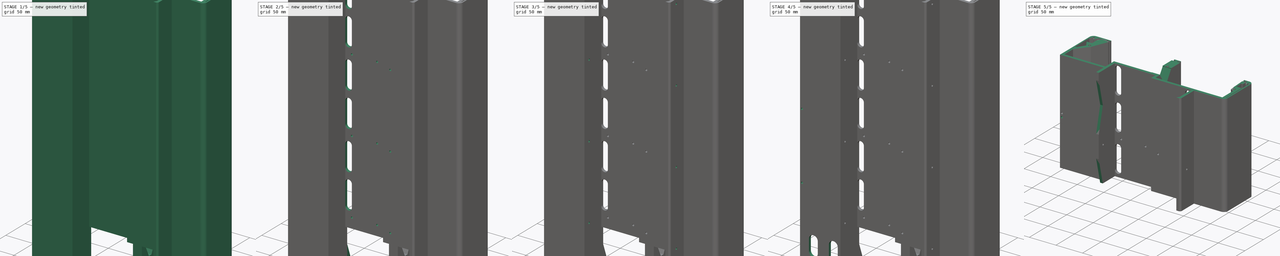
[diagram: build sequence overview — one tinted view per stage of 5, left to right]
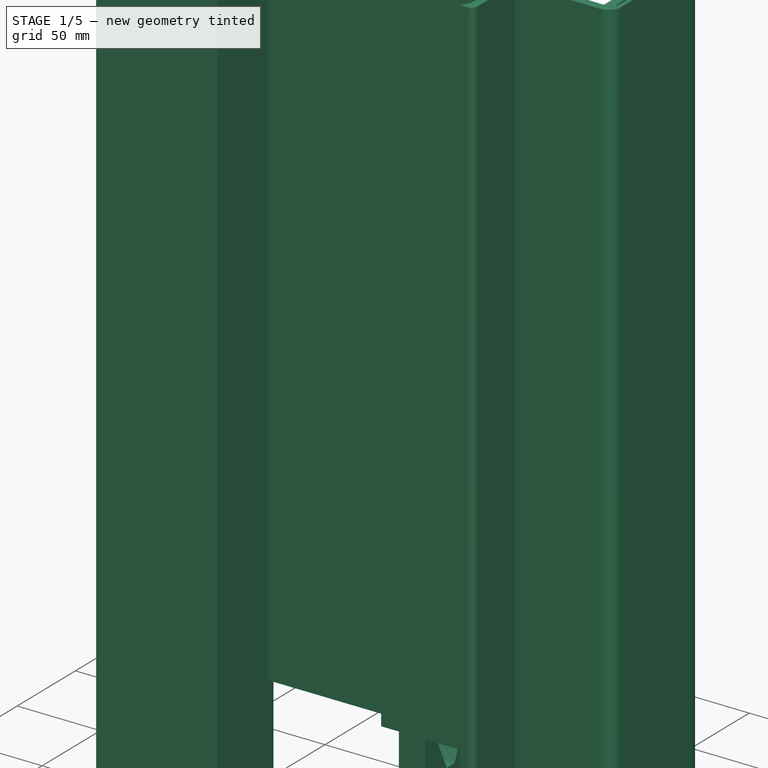
[diagram: stage 1 of 5 — iso view after this stage's code; geometry added in this stage tinted green]
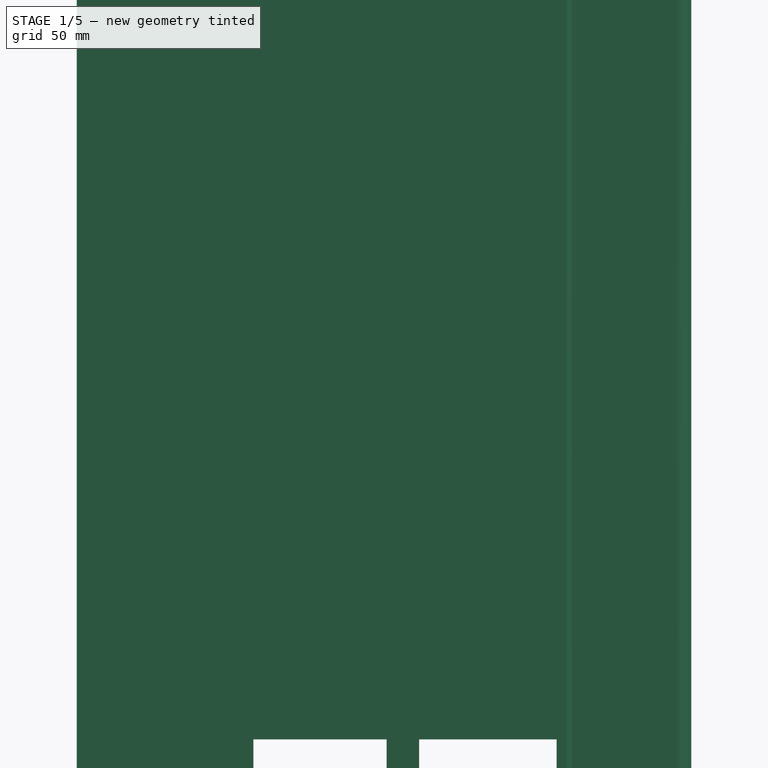
[diagram: stage 1 of 5 — front view after this stage's code; geometry added in this stage tinted green]
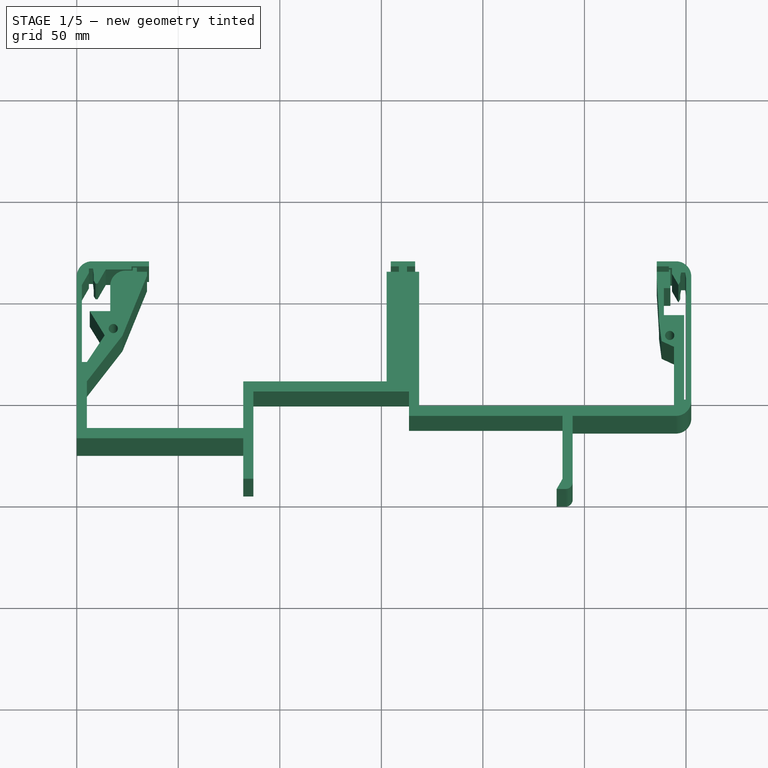
[diagram: stage 1 of 5 — top view after this stage's code; geometry added in this stage tinted green]
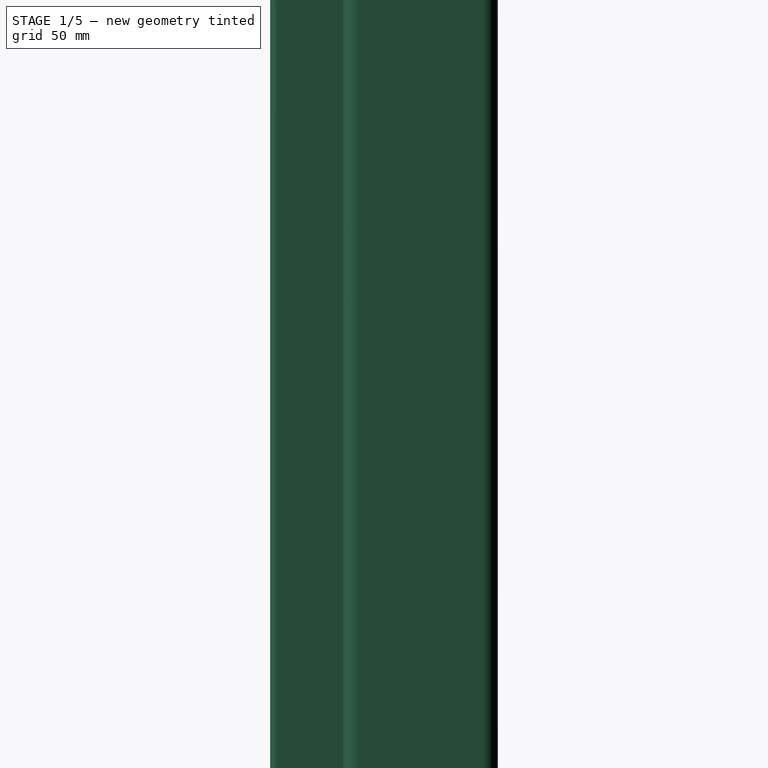
[diagram: stage 1 of 5 — right view after this stage's code; geometry added in this stage tinted green]
FCSTD DOCUMENT  (FreeCAD 0.21R33668 +7 (Git))
Label: planB
License: All rights reserved
LicenseURL: http://en.wikipedia.org/wiki/All_rights_reserved
objects: Sketcher::SketchObject×16, PartDesign::Pocket×14, PartDesign::Plane×8, PartDesign::Pad×2, Spreadsheet::Sheet×1, PartDesign::CoordinateSystem×1, PartDesign::Chamfer×1, PartDesign::LinearPattern×1, PartDesign::Mirrored×1, PartDesign::Body×1, App::Part×1
note: 62 computed .brp shape members not serialized (recipe doc carries the construction recipe); baked Part::Feature solids carry a one-line shape summary decoded from their .brp

FEATURE [Spreadsheet::Sheet] Spreadsheet  label="data"
  cells = B1='width; C1='depth; D1='height; E1='hole radius; A2='case (top plane); B2(case_w)=500; C2(case_d)==128.5 * 2 + 2 * topbot_latch_d + middle_space_d; F2='wall thickness; G2(wall_t)=4; A3='top row; C3(top_row_d)=65; F3='top/bottom latch; G3(topbot_latch_d)=8; A4='bottom row; C4(bot_row_d)=45; F4='middle spacer; G4(middle_space_d)=4; A5='central support; B5(central_w)==base_w - 2 * wall_t; C5(central_d)==case_d - 2 * wall_t; D5(central_h)=5; A6='case (bottom plane); B6(base_w)=555; C6(base_d)=289; F6='base thickness; G6(base_t)=5; A7='es-6; B7(es6_w)=128.5; C7(es6_d)=53; D7(es6_h)==5.08 * 6; F7='audio plug height; G7(plug_height_audio)=20; A8='es-3; B8(es3_w)=128.5; C8(es3_d)=53; D8(es3_h)==5.08 * 8; A9='es-7; B9(es7_w)=128.5; C9(es7_d)=57; D9(es7_h)==5.08 * 4; F9='adat plug height; G9(plug_height_adat)=40; A10='rme; B10(rme_w)=128; C10(rme_d)=55; D10(rme_h)=22; F10='usb plug height; G10(plug_height_usb)=20; A11='mungo; B11(mungo_w)=370; C11(mungo_d)=75; D11(mungo_h)=20; A12='power socket; F12='so 3x es modules in a row with front panels supported by 4mm spacers; G12==128.5 * 3 + 4 * 4; F13='and printing new panel replacement, no gap; G13==128.5 * 3 - 12 * 3; A14='output modules; B14(output_w)=128.5; C14(output_d)=50; D14(output_h)==5.08 * 6; F14='so rme+mungo+es are 450 of width, add the outputs and it's just over 500; A15='speaker enclosure; B15(speaker_w)=60; C15(speaker_d)=20; A16='es7 pcbonly; B16=60; C16=50; D16=20; F16='panel thickness; G16(panel_thickness)=2.6; A17='es6 pcb only; B17=100; B18='dia; C18='depth; A19='threaded insert M3; B19(insert_diameter)=4.3; C19(insert_d)=7; A20='screw clearance m3; B20(clearance_m3)=3.6; A21='clearance m4; B21(clearance_m4)=4.5; A23='L; B23(L_size)=9.5; C23(L_thickness)=1.6
FEATURE [Sketcher::SketchObject] Sketch001  label="plan"
  FullyConstrained = false
  MapMode = 5
  Support = -> [XY_Plane]
  expr: Constraints[106] = <<data>>.bot_row_d
  expr: Constraints[107] = <<data>>.top_row_d
  expr: Constraints[220] = <<data>>.panel_thickness
  expr: Constraints[225] = <<data>>.central_h
  expr: Constraints[226] = <<data>>.central_h
  expr: Constraints[227] = <<data>>.central_h
  expr: Constraints[228] = <<data>>.central_h
  expr: Constraints[229] = <<data>>.central_h
  expr: Constraints[230] = <<data>>.central_h
  expr: Constraints[232] = <<data>>.clearance_m4
  expr: Constraints[242] = <<data>>.central_h
  expr: Constraints[254] = <<data>>.panel_thickness
  expr: Constraints[255] = <<data>>.es3_d
  expr: Constraints[313] = <<data>>.panel_thickness
  expr: Constraints[37] = <<data>>.es6_d
  expr: Constraints[40] = <<data>>.panel_thickness
  expr: Constraints[42] = <<data>>.base_t + 2
  expr: Constraints[50] = <<data>>.mungo_d
  expr: Constraints[51] = <<data>>.mungo_h
  expr: Constraints[83] = <<data>>.base_t
  sketch-geometry (180):
    g0: LineSegment StartX=87 StartY=7 StartZ=0 EndX=162.6 EndY=7 EndZ=0
    g1: LineSegment StartX=162.6 StartY=7 StartZ=0 EndX=162.6 EndY=48 EndZ=0
    g2: LineSegment StartX=162.6 StartY=48 StartZ=0 EndX=87 EndY=48 EndZ=0
    g3: LineSegment StartX=87 StartY=48 StartZ=0 EndX=87 EndY=7 EndZ=0
    g4: LineSegment StartX=163.6 StartY=36 StartZ=0 EndX=239.2 EndY=36 EndZ=0
    g5: LineSegment StartX=239.2 StartY=36 StartZ=0 EndX=239.2 EndY=5 EndZ=0
    g6: LineSegment StartX=239.2 StartY=5 StartZ=0 EndX=163.6 EndY=5 EndZ=0
    g7: LineSegment StartX=163.6 StartY=5 StartZ=0 EndX=163.6 EndY=36 EndZ=0
    g8: LineSegment StartX=107 StartY=48 StartZ=0 EndX=109.6 EndY=48 EndZ=0
    g9: LineSegment StartX=109.6 StartY=48 StartZ=0 EndX=109.6 EndY=7 EndZ=0
    g10: LineSegment StartX=109.6 StartY=7 StartZ=0 EndX=107 EndY=7 EndZ=0
    g11: LineSegment StartX=107 StartY=7 StartZ=0 EndX=107 EndY=48 EndZ=0
    g12: LineSegment StartX=216.6 StartY=5 StartZ=0 EndX=219.2 EndY=5 EndZ=0
    g13: LineSegment StartX=219.2 StartY=5 StartZ=0 EndX=219.2 EndY=36 EndZ=0
    g14: LineSegment StartX=219.2 StartY=36 StartZ=0 EndX=216.6 EndY=36 EndZ=0
    g15: LineSegment StartX=216.6 StartY=36 StartZ=0 EndX=216.6 EndY=5 EndZ=0
    g16: LineSegment StartX=5 StartY=5 StartZ=0 EndX=80 EndY=5 EndZ=0
    g17: LineSegment StartX=80 StartY=5 StartZ=0 EndX=80 EndY=25 EndZ=0
    g18: LineSegment StartX=80 StartY=25 StartZ=0 EndX=5 EndY=25 EndZ=0
    g19: LineSegment StartX=5 StartY=25 StartZ=0 EndX=5 EndY=5 EndZ=0
    g20: LineSegment StartX=29.6 StartY=109 StartZ=0 EndX=158.6 EndY=109 EndZ=0
    g21: LineSegment StartX=158.6 StartY=109 StartZ=0 EndX=158.6 EndY=107 EndZ=0
    g22: LineSegment StartX=158.6 StartY=107 StartZ=0 EndX=29.6 EndY=107 EndZ=0
    g23: LineSegment StartX=29.6 StartY=107 StartZ=0 EndX=29.6 EndY=109 EndZ=0
    g24: LineSegment StartX=162.6 StartY=109 StartZ=0 EndX=291.6 EndY=109 EndZ=0
    g25: LineSegment StartX=291.6 StartY=109 StartZ=0 EndX=291.6 EndY=107 EndZ=0
    g26: LineSegment StartX=291.6 StartY=107 StartZ=0 EndX=162.6 EndY=107 EndZ=0
    g27: LineSegment StartX=162.6 StartY=107 StartZ=0 EndX=162.6 EndY=109 EndZ=0
    g28: LineSegment StartX=5 StartY=30 StartZ=0 EndX=80 EndY=30 EndZ=0
    g29: LineSegment StartX=80 StartY=30 StartZ=0 EndX=80 EndY=50 EndZ=0
    g30: LineSegment StartX=80 StartY=50 StartZ=0 EndX=5 EndY=50 EndZ=0
    g31: LineSegment StartX=5 StartY=50 StartZ=0 EndX=5 EndY=30 EndZ=0
    g32: LineSegment StartX=37.6 StartY=107 StartZ=0 EndX=150.6 EndY=107 EndZ=0
    g33: LineSegment StartX=150.6 StartY=107 StartZ=0 EndX=150.6 EndY=62 EndZ=0
    g34: LineSegment StartX=150.6 StartY=62 StartZ=0 EndX=37.6 EndY=62 EndZ=0
    g35: LineSegment StartX=37.6 StartY=62 StartZ=0 EndX=37.6 EndY=107 EndZ=0
    g36: LineSegment StartX=170.6 StartY=107 StartZ=0 EndX=283.6 EndY=107 EndZ=0
    g37: LineSegment StartX=283.6 StartY=107 StartZ=0 EndX=283.6 EndY=42 EndZ=0
    g38: LineSegment StartX=283.6 StartY=42 StartZ=0 EndX=170.6 EndY=42 EndZ=0
    g39: LineSegment StartX=170.6 StartY=42 StartZ=0 EndX=170.6 EndY=107 EndZ=0
    g40: LineSegment StartX=6.4 StartY=108.6 StartZ=0 EndX=6.4 EndY=99.1 EndZ=0
    g41: LineSegment StartX=6.4 StartY=99.1 StartZ=0 EndX=15.9 EndY=99.1 EndZ=0
    g42: LineSegment StartX=15.9 StartY=99.1 StartZ=0 EndX=15.9 EndY=100.7 EndZ=0
    g43: LineSegment StartX=15.9 StartY=100.7 StartZ=0 EndX=8 EndY=100.7 EndZ=0
    g44: LineSegment StartX=8 StartY=100.7 StartZ=0 EndX=8 EndY=108.6 EndZ=0
    g45: LineSegment StartX=8 StartY=108.6 StartZ=0 EndX=6.4 EndY=108.6 EndZ=0
    g46: LineSegment StartX=34.6 StartY=107 StartZ=0 EndX=29.6 EndY=107 EndZ=0
    g47: LineSegment StartX=29.6 StartY=107 StartZ=0 EndX=29.6 EndY=109 EndZ=0
    g48: LineSegment StartX=16.5 StartY=87.6 StartZ=0 EndX=6.4 EndY=87.6 EndZ=0
    g49: LineSegment StartX=5.01 StartY=62.5038 StartZ=0 EndX=2.51 EndY=62.5038 EndZ=0
    g50: LineSegment StartX=0 StartY=25 StartZ=0 EndX=82 EndY=25 EndZ=0
    g51: LineSegment StartX=82 StartY=25 StartZ=0 EndX=82 EndY=5 EndZ=0
    g52: LineSegment StartX=82 StartY=5 StartZ=0 EndX=87 EndY=5 EndZ=0
    g53: LineSegment StartX=87 StartY=5 StartZ=0 EndX=87 EndY=48 EndZ=0
    g54: LineSegment StartX=87 StartY=48 StartZ=0 EndX=163.6 EndY=48 EndZ=0
    g55: LineSegment StartX=163.6 StartY=48 StartZ=0 EndX=163.6 EndY=36 EndZ=0
    g56: LineSegment StartX=163.6 StartY=36 StartZ=0 EndX=239.2 EndY=36 EndZ=0
    g57: LineSegment StartX=236.313 StartY=0 StartZ=0 EndX=302.6 EndY=0 EndZ=0
    g58: LineSegment StartX=295.1 StartY=112.11 StartZ=0 EndX=285.6 EndY=112.11 EndZ=0
    g59: LineSegment StartX=285.6 StartY=112.11 StartZ=0 EndX=285.6 EndY=109.6 EndZ=0
    g60: LineSegment StartX=285.6 StartY=109.6 StartZ=0 EndX=291.6 EndY=109.6 EndZ=0
    g61: LineSegment StartX=291.6 StartY=107 StartZ=0 EndX=285.6 EndY=107 EndZ=0
    g62: LineSegment StartX=297.2 StartY=98.9 StartZ=0 EndX=297.2 EndY=106.6 EndZ=0
    g63: LineSegment StartX=297.2 StartY=106.6 StartZ=0 EndX=299.6 EndY=106.6 EndZ=0
    g64: LineSegment StartX=168.6 StartY=41 StartZ=0 EndX=168.6 EndY=107 EndZ=0
    g65: LineSegment StartX=168.6 StartY=107 StartZ=0 EndX=162.6 EndY=107 EndZ=0
    g66: LineSegment StartX=162.6 StartY=107 StartZ=0 EndX=162.6 EndY=109.6 EndZ=0
    g67: LineSegment StartX=162.6 StartY=109.6 StartZ=0 EndX=166.6 EndY=109.6 EndZ=0
    g68: LineSegment StartX=166.6 StartY=109.6 StartZ=0 EndX=166.6 EndY=112.11 EndZ=0
    g69: LineSegment StartX=166.6 StartY=112.11 StartZ=0 EndX=154.6 EndY=112.11 EndZ=0
    g70: LineSegment StartX=154.6 StartY=112.11 StartZ=0 EndX=154.6 EndY=109.6 EndZ=0
    g71: LineSegment StartX=154.6 StartY=109.6 StartZ=0 EndX=158.6 EndY=109.6 EndZ=0
    g72: LineSegment StartX=158.6 StartY=109.6 StartZ=0 EndX=158.6 EndY=107 EndZ=0
    g73: LineSegment StartX=158.6 StartY=107 StartZ=0 EndX=152.6 EndY=107 EndZ=0
    g74: LineSegment StartX=152.6 StartY=107 StartZ=0 EndX=152.6 EndY=53 EndZ=0
    g75: LineSegment StartX=152.6 StartY=53 StartZ=0 EndX=82 EndY=53 EndZ=0
    g76: LineSegment StartX=82 StartY=53 StartZ=0 EndX=82 EndY=30 EndZ=0
    g77: LineSegment StartX=82 StartY=30 StartZ=0 EndX=5 EndY=30 EndZ=0
    g78: LineSegment StartX=9.26603 StartY=101.1 StartZ=0 EndX=10.266 EndY=101.1 EndZ=0
    g79: LineSegment StartX=27 StartY=109.6 StartZ=0 EndX=35.6 EndY=109.6 EndZ=0
    g80: LineSegment StartX=35.6 StartY=109.6 StartZ=0 EndX=35.6 EndY=112.11 EndZ=0
    g81: LineSegment StartX=35.6 StartY=112.11 StartZ=0 EndX=7.5 EndY=112.11 EndZ=0
    g82: LineSegment StartX=0 StartY=104.61 StartZ=0 EndX=0 EndY=25 EndZ=0
    g83: LineSegment StartX=289.7 StartY=98.7 StartZ=0 EndX=289.7 EndY=97.1 EndZ=0
    g84: LineSegment StartX=289.7 StartY=97.1 StartZ=0 EndX=299.2 EndY=97.1 EndZ=0
    g85: LineSegment StartX=299.2 StartY=97.1 StartZ=0 EndX=299.2 EndY=106.6 EndZ=0
    g86: LineSegment StartX=299.2 StartY=106.6 StartZ=0 EndX=297.6 EndY=106.6 EndZ=0
    g87: LineSegment StartX=297.6 StartY=106.6 StartZ=0 EndX=297.6 EndY=98.7 EndZ=0
    g88: LineSegment StartX=297.6 StartY=98.7 StartZ=0 EndX=289.7 EndY=98.7 EndZ=0
    g89: Circle CenterX=160.6 CenterY=95 CenterZ=0 NormalX=0 NormalY=0 NormalZ=1 AngleXU=0 Radius=2.25
    g90: LineSegment StartX=244.2 StartY=41 StartZ=0 EndX=168.6 EndY=41 EndZ=0
    g91: LineSegment StartX=296.602 StartY=5 StartZ=0 EndX=296.602 EndY=42.3332 EndZ=0
    g92: LineSegment StartX=294.09 StartY=5 StartZ=0 EndX=296.602 EndY=5 EndZ=0
    g93: LineSegment StartX=291.6 StartY=109.6 StartZ=0 EndX=291.6 EndY=108.8 EndZ=0
    g94: LineSegment StartX=291.6 StartY=108.8 StartZ=0 EndX=291.6 EndY=108 EndZ=0
    g95: LineSegment StartX=291.6 StartY=108 StartZ=0 EndX=291.6 EndY=107 EndZ=0
    g96: LineSegment StartX=291.6 StartY=108 StartZ=0 EndX=292.3 EndY=108 EndZ=0
    g97: LineSegment StartX=292.3 StartY=108 StartZ=0 EndX=292.3 EndY=98.9 EndZ=0
    g98: LineSegment StartX=292.3 StartY=98.9 StartZ=0 EndX=289.1 EndY=98.9 EndZ=0
    g99: LineSegment StartX=289.1 StartY=98.9 StartZ=0 EndX=289.1 EndY=85.6 EndZ=0
    g100: LineSegment StartX=291.6 StartY=108.8 StartZ=0 EndX=293.1 EndY=108.8 EndZ=0
    g101: LineSegment StartX=293.1 StartY=108.8 StartZ=0 EndX=293.1 EndY=106.001 EndZ=0
    g102: LineSegment StartX=299.2 StartY=97.1 StartZ=0 EndX=289.7 EndY=97.1 EndZ=0
    g103: LineSegment StartX=289.7 StartY=97.1 StartZ=0 EndX=289.7 EndY=87.6 EndZ=0
    g104: LineSegment StartX=289.7 StartY=87.6 StartZ=0 EndX=299.2 EndY=87.6 EndZ=0
    g105: LineSegment StartX=299.2 StartY=87.6 StartZ=0 EndX=299.2 EndY=97.1 EndZ=0
    g106: LineSegment StartX=289.1 StartY=85.6 StartZ=0 EndX=299.09 EndY=85.6 EndZ=0
    g107: LineSegment StartX=299.09 StartY=85.6 StartZ=0 EndX=299.09 EndY=44 EndZ=0
    g108: LineSegment StartX=300.09 StartY=44 StartZ=0 EndX=299.09 EndY=44 EndZ=0
    g109: LineSegment StartX=152.6 StartY=95 StartZ=0 EndX=168.6 EndY=95 EndZ=0
    g110: LineSegment StartX=34.6 StartY=105 StartZ=0 EndX=34.6 EndY=107 EndZ=0
    g111: LineSegment StartX=5 StartY=30 StartZ=0 EndX=5 EndY=53 EndZ=0
    g112: LineSegment StartX=6 StartY=106.453 StartZ=0 EndX=6 EndY=108.6 EndZ=0
    g113: LineSegment StartX=2.51 StartY=62.5038 StartZ=0 EndX=2.51 EndY=100.408 EndZ=0
    g114: LineSegment StartX=2.51 StartY=100.408 StartZ=0 EndX=6 EndY=106.453 EndZ=0
    g115: LineSegment StartX=5 StartY=53 StartZ=0 EndX=22.5123 EndY=75.4807 EndZ=0
    g116: LineSegment StartX=22.5123 StartY=75.4807 StartZ=0 EndX=34.6 EndY=105 EndZ=0
    g117: Circle CenterX=18 CenterY=79 CenterZ=0 NormalX=0 NormalY=0 NormalZ=1 AngleXU=0 Radius=2.25
    g118: LineSegment StartX=300.09 StartY=98.0513 StartZ=0 EndX=300.09 EndY=44 EndZ=0
    g119: LineSegment StartX=299.6 StartY=106.6 StartZ=0 EndX=299.6 EndY=98.9 EndZ=0
    g120: LineSegment StartX=299.6 StartY=98.9 StartZ=0 EndX=300.09 EndY=98.0513 EndZ=0
    g121: LineSegment StartX=8.4 StartY=102.6 StartZ=0 EndX=9.26603 EndY=101.1 EndZ=0
    g122: LineSegment StartX=10.266 StartY=101.1 StartZ=0 EndX=14.3133 EndY=108.11 EndZ=0
    g123: LineSegment StartX=285.6 StartY=107 StartZ=0 EndX=285.6 EndY=104 EndZ=0
    g124: LineSegment StartX=285.6 StartY=104 StartZ=0 EndX=286.7 EndY=85.6 EndZ=0
    g125: LineSegment StartX=286.7 StartY=85.6 StartZ=0 EndX=286.7 EndY=82.6 EndZ=0
    g126: Circle CenterX=292 CenterY=75.6 CenterZ=0 NormalX=0 NormalY=0 NormalZ=1 AngleXU=0 Radius=2.25
    g127: LineSegment StartX=294.09 StartY=75.6 StartZ=0 EndX=299.09 EndY=75.6 EndZ=0
    g128: LineSegment StartX=15.9 StartY=99.1 StartZ=0 EndX=6.4 EndY=99.1 EndZ=0
    g129: LineSegment StartX=6.4 StartY=99.1 StartZ=0 EndX=6.4 EndY=89.6 EndZ=0
    g130: LineSegment StartX=6.4 StartY=89.6 StartZ=0 EndX=15.9 EndY=89.6 EndZ=0
    g131: LineSegment StartX=15.9 StartY=89.6 StartZ=0 EndX=15.9 EndY=99.1 EndZ=0
    g132: LineSegment StartX=16.5 StartY=100.01 StartZ=0 EndX=16.5 EndY=87.6 EndZ=0
    g133: LineSegment StartX=29.6 StartY=109 StartZ=0 EndX=27.6 EndY=109 EndZ=0
    g134: LineSegment StartX=24 StartY=107.51 StartZ=0 EndX=27.6 EndY=107.51 EndZ=0
    g135: LineSegment StartX=27.6 StartY=107.51 StartZ=0 EndX=27.6 EndY=109 EndZ=0
    g136: LineSegment StartX=14.3133 StartY=108.11 StartZ=0 EndX=27 EndY=108.11 EndZ=0
    g137: LineSegment StartX=27 StartY=108.11 StartZ=0 EndX=27 EndY=109.6 EndZ=0
    g138: LineSegment StartX=244.2 StartY=5 StartZ=0 EndX=294.09 EndY=5 EndZ=0
    g139: LineSegment StartX=294.09 StartY=41 StartZ=0 EndX=294.09 EndY=5 EndZ=0
    g140: LineSegment StartX=297.6 StartY=41 StartZ=0 EndX=294.09 EndY=41 EndZ=0
    g141: LineSegment StartX=294.09 StartY=41 StartZ=0 EndX=244.2 EndY=41 EndZ=0
    g142: LineSegment StartX=294.09 StartY=70 StartZ=0 EndX=294.09 EndY=41 EndZ=0
    g143: LineSegment StartX=244.2 StartY=41 StartZ=0 EndX=244.2 EndY=36 EndZ=0
    g144: LineSegment StartX=244.2 StartY=36 StartZ=0 EndX=244.2 EndY=5 EndZ=0
    g145: LineSegment StartX=302.6 StartY=0 StartZ=0 EndX=302.6 EndY=36 EndZ=0
    g146: LineSegment StartX=302.6 StartY=43.5 StartZ=0 EndX=302.6 EndY=104.61 EndZ=0
    g147: LineSegment StartX=244.2 StartY=36 StartZ=0 EndX=295.1 EndY=36 EndZ=0
    g148: LineSegment StartX=244.2 StartY=5 StartZ=0 EndX=244.2 EndY=3.4627 EndZ=0
    g149: LineSegment StartX=240.737 StartY=0 StartZ=0 EndX=236.313 EndY=0 EndZ=0
    g150: LineSegment StartX=239.2 StartY=36 StartZ=0 EndX=239.2 EndY=5 EndZ=0
    g151: LineSegment StartX=239.2 StartY=5 StartZ=0 EndX=236.313 EndY=0 EndZ=0
    g152: ArcOfCircle CenterX=7.5 CenterY=104.61 CenterZ=0 NormalX=0 NormalY=0 NormalZ=1 AngleXU=0 Radius=7.5 StartAngle=1.5708 EndAngle=3.14159
    g153: GeomPoint X=0 Y=112.11 Z=0
    g154: ArcOfCircle CenterX=295.1 CenterY=104.61 CenterZ=0 NormalX=0 NormalY=0 NormalZ=1 AngleXU=0 Radius=7.5 StartAngle=0 EndAngle=1.5708
    g155: GeomPoint X=302.6 Y=112.11 Z=0
    g156: LineSegment StartX=300.09 StartY=98.0513 StartZ=0 EndX=300.09 EndY=103.643 EndZ=0
    g157: LineSegment StartX=300.09 StartY=103.643 StartZ=0 EndX=299.6 EndY=106.6 EndZ=0
    g158: LineSegment StartX=293.1 StartY=106.001 StartZ=0 EndX=296.235 EndY=100.571 EndZ=0
    g159: LineSegment StartX=296.235 StartY=100.571 StartZ=0 EndX=297.2 EndY=98.9 EndZ=0
    g160: LineSegment StartX=296.235 StartY=100.571 StartZ=0 EndX=297.2 EndY=102.17 EndZ=0
    g161: LineSegment StartX=297.2 StartY=102.17 StartZ=0 EndX=297.2 EndY=104.659 EndZ=0
    g162: LineSegment StartX=297.2 StartY=104.659 StartZ=0 EndX=297.6 EndY=106.6 EndZ=0
    g163: LineSegment StartX=297.6 StartY=106.6 StartZ=0 EndX=299.6 EndY=106.6 EndZ=0
    g164: LineSegment StartX=6 StartY=108.6 StartZ=0 EndX=8 EndY=108.6 EndZ=0
    g165: LineSegment StartX=8 StartY=108.6 StartZ=0 EndX=8.4 EndY=108.6 EndZ=0
    g166: LineSegment StartX=8.4 StartY=108.6 StartZ=0 EndX=8.4 EndY=105.434 EndZ=0
    g167: LineSegment StartX=8.4 StartY=105.434 StartZ=0 EndX=8.4 EndY=102.6 EndZ=0
    g168: LineSegment StartX=8 StartY=108.6 StartZ=0 EndX=8.4 EndY=105.434 EndZ=0
    g169: ArcOfCircle CenterX=295.1 CenterY=43.5 CenterZ=0 NormalX=0 NormalY=0 NormalZ=1 AngleXU=0 Radius=7.5 StartAngle=4.71239 EndAngle=6.28319
    g170: GeomPoint X=302.6 Y=36 Z=0
    g171: GeomPoint X=0 Y=25 Z=0
    g172: LineSegment StartX=6.4 StartY=87.6 StartZ=0 EndX=13.7893 EndY=75.6422 EndZ=0
    g173: LineSegment StartX=13.7893 StartY=75.6422 StartZ=0 EndX=5.01 EndY=62.5038 EndZ=0
    g174: ArcOfCircle CenterX=24 CenterY=100.01 CenterZ=0 NormalX=0 NormalY=0 NormalZ=1 AngleXU=0 Radius=7.5 StartAngle=1.5708 EndAngle=3.14159
    g175: GeomPoint X=16.5 Y=107.51 Z=0
    g176: LineSegment StartX=286.7 StartY=82.6 StartZ=0 EndX=287.99 EndY=72.7971 EndZ=0
    g177: LineSegment StartX=287.99 StartY=72.7971 StartZ=0 EndX=294.09 EndY=70 EndZ=0
    g178: ArcOfCircle CenterX=240.737 CenterY=3.4627 CenterZ=0 NormalX=0 NormalY=0 NormalZ=1 AngleXU=0 Radius=3.4627 StartAngle=4.71239 EndAngle=6.28319
    g179: GeomPoint X=244.2 Y=0 Z=0
  constraints (496):
    c: Coincident(g0,g1)
    c: Coincident(g1,g2)
    c: Coincident(g2,g3)
    c: Coincident(g3,g0)
    c: Horizontal(g0)
    c: Horizontal(g2)
    c: Vertical(g1)
    c: Vertical(g3)
    c: Coincident(g4,g5)
    c: Coincident(g5,g6)
    c: Coincident(g6,g7)
    c: Coincident(g7,g4)
    c: Horizontal(g4)
    c: Horizontal(g6)
    c: Vertical(g5)
    c: Vertical(g7)
    c: Coincident(g8,g9)
    c: Coincident(g9,g10)
    c: Coincident(g10,g11)
    c: Coincident(g11,g8)
    c: Horizontal(g8)
    c: Horizontal(g10)
    c: Vertical(g9)
    c: Vertical(g11)
    c: PointOnObject(g8,g2)
    c: PointOnObject(g9,g0)
    c: Coincident(g12,g13)
    c: Coincident(g13,g14)
    c: Coincident(g14,g15)
    c: Coincident(g15,g12)
    c: Horizontal(g12)
    c: Horizontal(g14)
    c: Vertical(g13)
    c: Vertical(g15)
    c: PointOnObject(g12,g6)
    c: PointOnObject(g13,g4)
    c: Distance(g13,g5) = 20
    c: Distance(g14,g7) = 53
    c: Distance(g7) = 31
    c: Distance(g1) = 41
    c: Distance(g8,g9) = 2.6
    c: Distance(g8,g3) = 20
    c: DistanceY(g0) = 7
    c: Coincident(g16,g17)
    c: Coincident(g17,g18)
    c: Coincident(g18,g19)
    c: Coincident(g19,g16)
    c: Horizontal(g18)
    c: Vertical(g17)
    c: Vertical(g19)
    c: Distance(g18) = 75
    c: Distance(g19) = 20
    c: Coincident(g20,g21)
    c: Coincident(g21,g22)
    c: Coincident(g22,g23)
    c: Coincident(g23,g20)
    c: Horizontal(g20)
    c: Horizontal(g22)
    c: Vertical(g21)
    c: Vertical(g23)
    c: Coincident(g24,g25)
    c: Coincident(g25,g26)
    c: Coincident(g26,g27)
    c: Coincident(g27,g24)
    c: Horizontal(g24)
    c: Vertical(g25)
    c: Vertical(g27)
    c: Equal(g21,g27)
    c: Equal(g22,g26)
    c: Distance(g21) = 2
    c: Distance(g20) = 129
    c: Distance(g21,g27) = 4
    c: Tangent(g26,g22)
    c: Coincident(g28,g29)
    c: Coincident(g29,g30)
    c: Coincident(g30,g31)
    c: Coincident(g31,g28)
    c: Horizontal(g28)
    c: Horizontal(g30)
    c: Vertical(g29)
    c: Vertical(g31)
    c: Equal(g29,g17)
    c: Equal(g18,g28)
    c: DistanceY(g-1,g16) = 5
    c: DistanceX(g-2,g16) = 5
    c: Coincident(g32,g33)
    c: Coincident(g33,g34)
    c: Coincident(g34,g35)
    c: Coincident(g35,g32)
    c: Horizontal(g32)
    c: Horizontal(g34)
    c: Vertical(g33)
    c: Vertical(g35)
    c: PointOnObject(g32,g22)
    c: Coincident(g36,g37)
    c: Coincident(g37,g38)
    c: Coincident(g38,g39)
    c: Coincident(g39,g36)
    c: Horizontal(g36)
    c: Horizontal(g38)
    c: Vertical(g37)
    c: Vertical(g39)
    c: PointOnObject(g36,g26)
    c: Distance(g22,g35) = 8
    c: Distance(g21,g33) = 8
    c: Distance(g26,g39) = 8
    c: Distance(g35) = 45
    c: Distance(g39) = 65
    c: Distance(g36,g25) = 8
    c: Vertical(g40)
    c: Coincident(g40,g41)
    c: Horizontal(g41)
    c: Coincident(g41,g42)
    c: Vertical(g42)
    c: Coincident(g42,g43)
    c: Horizontal(g43)
    c: Coincident(g43,g44)
    c: Vertical(g44)
    c: Coincident(g44,g45)
    c: Coincident(g45,g40)
    c: Equal(g44,g43)
    c: Horizontal(g45)
    c: Equal(g42,g45)
    c: Distance(g41) = 9.5
    c: Distance(g45) = 1.6
    c: Horizontal(g46)
    c: Coincident(g46,g47)
    c: Vertical(g47)
    c: Coincident(g47,g133)
    c: Coincident(g132,g48)
    c: Coincident(g48,g172)
    c: Coincident(g173,g49)
    c: Coincident(g110,g46)
    c: PointOnObject(g171,g-2)
    c: Horizontal(g50)
    c: Coincident(g50,g51)
    c: Vertical(g51)
    c: Coincident(g51,g52)
    c: Coincident(g52,g53)
    c: Vertical(g53)
    c: Coincident(g53,g54)
    c: Horizontal(g54)
    c: Coincident(g54,g55)
    c: Vertical(g55)
    c: Coincident(g55,g56)
    c: Horizontal(g56)
    c: Coincident(g56,g150)
    c: Coincident(g151,g57)
    c: Horizontal(g57)
    c: Horizontal(g58)
    c: Coincident(g58,g59)
    c: Vertical(g59)
    c: Coincident(g59,g60)
    c: Coincident(g60,g93)
    c: Coincident(g95,g61)
    c: Horizontal(g61)
    c: Coincident(g61,g123)
    c: Vertical(g62)
    c: Coincident(g62,g63)
    c: Horizontal(g63)
    c: Coincident(g90,g64)
    c: Vertical(g64)
    c: Coincident(g64,g65)
    c: Horizontal(g65)
    c: Coincident(g65,g66)
    c: Vertical(g66)
    c: Coincident(g66,g67)
    c: Horizontal(g67)
    c: Coincident(g67,g68)
    c: Vertical(g68)
    c: Coincident(g68,g69)
    c: Horizontal(g69)
    c: Coincident(g69,g70)
    c: Coincident(g70,g71)
    c: Horizontal(g71)
    c: Coincident(g71,g72)
    c: Vertical(g72)
    c: Coincident(g72,g73)
    c: Horizontal(g73)
    c: Coincident(g73,g74)
    c: Vertical(g74)
    c: Coincident(g74,g75)
    c: Horizontal(g75)
    c: Coincident(g75,g76)
    c: Vertical(g76)
    c: Coincident(g76,g77)
    c: Horizontal(g77)
    c: Coincident(g77,g111)
    c: Coincident(g112,g164)
    c: Coincident(g165,g166)
    c: Coincident(g121,g78)
    c: Horizontal(g78)
    c: Coincident(g78,g122)
    c: Horizontal(g79)
    c: Coincident(g79,g80)
    c: Vertical(g80)
    c: Coincident(g80,g81)
    c: PointOnObject(g153,g-2)
    c: Horizontal(g81)
    c: Vertical(g83)
    c: Coincident(g83,g84)
    c: Horizontal(g84)
    c: Coincident(g84,g85)
    c: Vertical(g85)
    c: Coincident(g85,g86)
    c: Horizontal(g86)
    c: Coincident(g86,g87)
    c: Vertical(g87)
    c: Coincident(g87,g88)
    c: Coincident(g88,g83)
    c: Horizontal(g88)
    c: Equal(g83,g86)
    c: Equal(g86,g42)
    c: Equal(g84,g85)
    c: Equal(g85,g41)
    c: Distance(g72,g66) = 4
    c: Equal(g67,g71)
    c: Vertical(g70)
    c: Equal(g70,g68)
    c: Distance(g68) = 2.51
    c: Distance(g66) = 2.6
    c: Equal(g72,g66)
    c: Distance(g67,g64) = 2
    c: Distance(g67) = 4
    c: Equal(g73,g65)
    c: Distance(g53,g75) = 5
    c: Distance(g53,g76) = 5
    c: Distance(g54,g64) = 5
    c: Distance(g52) = 5
    c: Distance(g50,g77) = 5
    c: Distance(g77,g82) = 5
    c: Horizontal(g60)
    c: Diameter(g89) = 4.5
    c: Coincident(g141,g90)
    c: Horizontal(g90)
    c: Distance(g55,g90) = 5
    c: Distance(g140,g90) = 129
    c: Coincident(g145,g57)
    c: PointOnObject(g151,g-1)
    c: Coincident(g90,g143)
    c: Coincident(g92,g91)
    c: Vertical(g91)
    c: Distance(g144,g57) = 5
    c: Coincident(g138,g92)
    c: Horizontal(g92)
    c: Distance(g16,g51) = 2
    c: Tangent(g16,g52)
    c: Tangent(g6,g52)
    c: Distance(g28,g76) = 2
    c: PointOnObject(g8,g54)
    c: PointOnObject(g0,g53)
    c: PointOnObject(g17,g50)
    c: PointOnObject(g28,g77)
    c: Coincident(g63,g119)
    c: Distance(g12,g15) = 2.6
    c: Distance(g8,g1) = 53
    c: Distance(g0,g7) = 1
    c: Coincident(g21,g72)
    c: Distance(g38,g90) = 1
    c: Distance(g55,g1) = 1
    c: PointOnObject(g55,g4)
    c: Distance(g59) = 2.51
    c: Distance(g24,g59) = 6
    c: Coincident(g93,g94)
    c: Vertical(g93)
    c: Distance(g93,g95) = 2.6
    c: PointOnObject(g24,g93)
    c: Distance(g61) = 6
    c: Coincident(g94,g95)
    c: Vertical(g94)
    c: Vertical(g95)
    c: Coincident(g95,g96)
    c: Horizontal(g96)
    c: Coincident(g96,g97)
    c: Vertical(g97)
    c: Coincident(g97,g98)
    c: Horizontal(g98)
    c: Coincident(g98,g99)
    c: Vertical(g99)
    c: Coincident(g93,g100)
    c: Horizontal(g100)
    c: Coincident(g100,g101)
    c: Vertical(g101)
    c: Coincident(g101,g158)
    c: Coincident(g159,g62)
    c: PointOnObject(g61,g26)
    c: Coincident(g102,g103)
    c: Coincident(g103,g104)
    c: Coincident(g104,g105)
    c: Coincident(g105,g102)
    c: Horizontal(g104)
    c: Vertical(g103)
    c: Vertical(g105)
    c: Coincident(g102,g84)
    c: Coincident(g102,g83)
    c: Equal(g103,g85)
    c: Coincident(g99,g106)
    c: Horizontal(g106)
    c: Coincident(g106,g107)
    c: Vertical(g107)
    c: Coincident(g108,g118)
    c: Coincident(g108,g107)
    c: Horizontal(g108)
    c: Coincident(g138,g139)
    c: PointOnObject(g109,g74)
    c: PointOnObject(g109,g64)
    c: Horizontal(g109)
    c: Symmetric(g109,g109,g89)
    c: Distance(g109,g65) = 12
    c: Distance(g80) = 2.51
    c: PointOnObject(g22,g46)
    c: Distance(g47) = 2
    c: PointOnObject(g22,g47)
    c: Distance(g46,g79) = 2.6
    c: Distance(g47,g80) = 6
    c: Coincident(g116,g110)
    c: Vertical(g110)
    c: Distance(g46) = 5
    c: Distance(g110) = 2
    c: Horizontal(g48)
    c: Vertical(g111)
    c: Coincident(g114,g112)
    c: Vertical(g112)
    c: Coincident(g113,g114)
    c: Vertical(g113)
    c: Distance(g113,g82) = 2.51
    c: Distance(g112,g82) = 6
    c: Coincident(g113,g49)
    c: Horizontal(g49)
    c: Coincident(g111,g115)
    c: Coincident(g115,g116)
    c: Equal(g89,g117)
    c: Coincident(g120,g118)
    c: Vertical(g118)
    c: Coincident(g119,g120)
    c: Vertical(g119)
    c: Coincident(g167,g121)
    c: Angle(g78,g121) = 2.0944
    c: Distance(g167,g44) = 0.4
    c: Angle(g122,g78) = 2.0944
    c: Distance(g78,g43) = 0.4
    c: Distance(g78) = 1
    c: Distance(g111,g30) = 3
    c: Distance(g101,g119) = 6.5
    c: Equal(g62,g119)
    c: PointOnObject(g86,g63)
    c: Angle(g120,g118) = 2.61799
    c: Distance(g119,g85) = 0.4
    c: Distance(g62,g87) = 0.4
    c: Distance(g101,g97) = 0.8
    c: Distance(g96,g100) = 0.8
    c: Distance(g62,g88) = 0.2
    c: Distance(g97,g88) = 0.2
    c: Distance(g96,g61) = 1
    c: Distance(g83,g99) = 0.6
    c: Distance(g103,g106) = 2
    c: Coincident(g123,g124)
    c: Vertical(g123)
    c: Coincident(g124,g125)
    c: Coincident(g125,g176)
    c: Vertical(g125)
    c: Coincident(g177,g142)
    c: Distance(g124,g99) = 2.4
    c: Distance(g125,g106) = 3
    c: Distance(g108) = 1
    c: PointOnObject(g127,g107)
    c: Horizontal(g127)
    c: Distance(g126,g106) = 10
    c: Parallel(g114,g122)
    c: Coincident(g128,g129)
    c: Coincident(g129,g130)
    c: Coincident(g130,g131)
    c: Coincident(g131,g128)
    c: Horizontal(g130)
    c: Vertical(g129)
    c: Vertical(g131)
    c: Coincident(g128,g41)
    c: Coincident(g128,g40)
    c: Equal(g130,g129)
    c: Distance(g130,g48) = 2
    c: Distance(g49) = 2.5
    c: Vertical(g132)
    c: Distance(g41,g132) = 0.6
    c: Horizontal(g133)
    c: Horizontal(g134)
    c: Coincident(g134,g135)
    c: Coincident(g135,g133)
    c: Vertical(g135)
    c: Distance(g133) = 2
    c: Coincident(g122,g136)
    c: Horizontal(g136)
    c: Coincident(g136,g137)
    c: Coincident(g137,g79)
    c: Vertical(g137)
    c: Distance(g136,g135) = 0.6
    c: Distance(g136,g134) = 0.6
    c: Distance(g122,g81) = 4
    c: Horizontal(g138)
    c: Vertical(g139)
    c: DistanceY(g177) = 70
    c: Equal(g125,g123)
    c: Distance(g125) = 3
    c: DistanceX(g126) = 292
    c: DistanceX(g117) = 18
    c: DistanceY(g117) = 79
    c: Distance(g40,g112) = 0.4
    c: DistanceY(g107) = 44
    c: Coincident(g140,g141)
    c: Horizontal(g140)
    c: Horizontal(g141)
    c: Vertical(g142)
    c: PointOnObject(g127,g142)
    c: Coincident(g140,g142)
    c: Coincident(g139,g142)
    c: Coincident(g138,g144)
    c: Coincident(g143,g144)
    c: Vertical(g143)
    c: Vertical(g144)
    c: Coincident(g145,g170)
    c: Vertical(g145)
    c: Vertical(g146)
    c: Distance(g140,g146) = 5
    c: Distance(g118,g146) = 2.51
    c: Distance(g119,g146) = 3
    c: Coincident(g147,g143)
    c: Horizontal(g147)
    c: PointOnObject(g143,g56)
    c: Coincident(g144,g148)
    c: PointOnObject(g179,g57)
    c: Vertical(g148)
    c: Coincident(g149,g151)
    c: Coincident(g150,g151)
    c: Vertical(g150)
    c: Distance(g144,g150) = 5
    c: Coincident(g150,g5)
    c: Angle(g149,g151) = 1.0472
    c: PointOnObject(g153,g82)
    c: PointOnObject(g153,g81)
    c: Tangent(g82,g152) = -1.5708
    c: Tangent(g81,g152) = -1.5708
    c: Diameter(g152) = 15
    c: DistanceY(g164) = 108.6
    c: DistanceY(g62) = 106.6
    c: Distance(g177,g146) = 8.51
    c: PointOnObject(g155,g58)
    c: PointOnObject(g155,g146)
    c: Tangent(g58,g154) = -1.5708
    c: Tangent(g146,g154) = -1.5708
    c: Diameter(g154) = 15
    c: Coincident(g156,g118)
    c: Vertical(g156)
    c: Coincident(g157,g156)
    c: Coincident(g157,g63)
    c: Coincident(g158,g159)
    c: Parallel(g120,g158)
    c: Parallel(g120,g159)
    c: Coincident(g158,g160)
    c: PointOnObject(g160,g62)
    c: Coincident(g160,g161)
    c: PointOnObject(g161,g62)
    c: Coincident(g161,g162)
    c: Coincident(g162,g86)
    c: Coincident(g162,g163)
    c: Coincident(g163,g157)
    c: Coincident(g164,g165)
    c: Horizontal(g164)
    c: Horizontal(g165)
    c: Coincident(g166,g167)
    c: Vertical(g166)
    c: Vertical(g167)
    c: Distance(g166,g167) = 6
    c: Coincident(g168,g164)
    c: Coincident(g168,g166)
    c: Coincident(g164,g44)
    c: PointOnObject(g170,g147)
    c: PointOnObject(g170,g146)
    c: Tangent(g147,g169) = -1.5708
    c: Tangent(g146,g169) = -1.5708
    c: PointOnObject(g171,g50)
    c: PointOnObject(g171,g82)
    c: Coincident(g172,g173)
    c: PointOnObject(g48,g129)
    c: Coincident(g50,g82)
    c: Equal(g169,g154)
    c: Equal(g89,g126)
    c: PointOnObject(g175,g132)
    c: PointOnObject(g175,g134)
    c: Tangent(g132,g174) = -1.5708
    c: Tangent(g134,g174) = 1.5708
    c: Equal(g174,g152)
    c: Coincident(g176,g177)
    c: Distance(g176,g146) = 14.61
    c: PointOnObject(g179,g148)
    c: PointOnObject(g179,g149)
    c: Tangent(g148,g178) = 1.5708
    c: Tangent(g149,g178) = 1.5708
FEATURE [PartDesign::Pad] Pad  label="main extrusion"
  Direction = (0,0,1)
  Length = 500
  Length2 = 10
  Profile = -> Sketch001
  ReferenceAxis = -> Sketch001 [N_Axis]
  Type = 0
  expr: Length = <<data>>.case_w
FEATURE [PartDesign::Plane] DatumPlane  label="endplane"
  AttachmentOffset = pos=(0,0,500) rot=(0,0,1;0rad)
  Length = 60
  MapMode = 2
  Placement = pos=(0,0,500) rot=(0,0,1;0rad)
  ResizeMode = 0
  Support = -> [Sketch001]
  Width = 60
  expr: .AttachmentOffset.Base.z = <<data>>.case_w
FEATURE [PartDesign::Plane] DatumPlane001  label="midplane"
  AttachmentOffset = pos=(0,0,250) rot=(0,0,1;0rad)
  Length = 60
  MapMode = 2
  Placement = pos=(0,0,250) rot=(0,0,1;0rad)
  ResizeMode = 0
  Support = -> [Pad]
  Width = 60
  expr: .AttachmentOffset.Base.z = <<data>>.case_w / 2
FEATURE [Sketcher::SketchObject] Sketch002
  FullyConstrained = false
  MapMode = 5
  Support = -> [XY_Plane]
  expr: Constraints[10] = <<data>>.central_h
  expr: Constraints[9] = 62
  sketch-geometry (8):
    g0: LineSegment StartX=87 StartY=67 StartZ=0 EndX=239.2 EndY=67 EndZ=0
    g1: LineSegment StartX=239.2 StartY=67 StartZ=0 EndX=239.2 EndY=5 EndZ=0
    g2: LineSegment StartX=239.2 StartY=5 StartZ=0 EndX=87 EndY=5 EndZ=0
    g3: LineSegment StartX=87 StartY=5 StartZ=0 EndX=87 EndY=67 EndZ=0
    g4: LineSegment StartX=87 StartY=5 StartZ=0 EndX=161.905 EndY=5 EndZ=0
    g5: LineSegment StartX=87 StartY=48 StartZ=0 EndX=87 EndY=67 EndZ=0
    g6: LineSegment StartX=161.905 StartY=5 StartZ=0 EndX=161.905 EndY=48 EndZ=0
    g7: LineSegment StartX=161.905 StartY=48 StartZ=0 EndX=87 EndY=48 EndZ=0
  constraints (22):
    c: Coincident(g0,g1)
    c: Coincident(g1,g2)
    c: Coincident(g2,g3)
    c: Coincident(g3,g0)
    c: Horizontal(g0)
    c: Horizontal(g2)
    c: Vertical(g1)
    c: Vertical(g3)
    c: Distance(g0) = 152.2
    c: Distance(g3) = 62
    c: DistanceY(g1) = 5
    c: Coincident(g2,g4)
    c: Horizontal(g4)
    c: Coincident(g4,g6)
    c: PointOnObject(g5,g3)
    c: Coincident(g5,g0)
    c: Coincident(g6,g7)
    c: Vertical(g6)
    c: Coincident(g7,g5)
    c: Horizontal(g7)
    c: Distance(g5,g2) = 43
    c: DistanceX(g0) = 87
FEATURE [Sketcher::SketchObject] Sketch005
  FullyConstrained = false
  MapMode = 5
  Support = -> [XY_Plane]
  expr: Constraints[27] = <<data>>.mungo_h + <<data>>.base_t + <<data>>.central_h
  expr: Constraints[5] = <<data>>.central_h
  sketch-geometry (18):
    g0: LineSegment StartX=-6.84485 StartY=120.411 StartZ=0 EndX=158.6 EndY=120.411 EndZ=0
    g1: LineSegment StartX=152.6 StartY=55.7262 StartZ=0 EndX=64.5482 EndY=55.7262 EndZ=0
    g2: LineSegment StartX=64.5482 StartY=55.7262 StartZ=0 EndX=51.4964 EndY=43.8765 EndZ=0
    g3: LineSegment StartX=51.4964 StartY=43.8765 StartZ=0 EndX=5 EndY=43.8765 EndZ=0
    g4: LineSegment StartX=5 StartY=43.8765 StartZ=0 EndX=5 EndY=30 EndZ=0
    g5: LineSegment StartX=5 StartY=30 StartZ=0 EndX=-6.84485 EndY=30 EndZ=0
    g6: LineSegment StartX=-6.84485 StartY=30 StartZ=0 EndX=-6.84485 EndY=120.411 EndZ=0
    g7: LineSegment StartX=244.2 StartY=82 StartZ=0 EndX=279.092 EndY=82 EndZ=0
    g8: LineSegment StartX=296.6 StartY=5 StartZ=0 EndX=244.2 EndY=5 EndZ=0
    g9: LineSegment StartX=244.2 StartY=5 StartZ=0 EndX=244.2 EndY=82 EndZ=0
    g10: LineSegment StartX=152.6 StartY=107 StartZ=0 EndX=152.6 EndY=55.7262 EndZ=0
    g11: LineSegment StartX=158.6 StartY=120.411 StartZ=0 EndX=158.6 EndY=107 EndZ=0
    g12: LineSegment StartX=158.6 StartY=107 StartZ=0 EndX=152.6 EndY=107 EndZ=0
    g13: LineSegment StartX=279.092 StartY=82 StartZ=0 EndX=279.092 EndY=67 EndZ=0
    g14: LineSegment StartX=296.6 StartY=23 StartZ=0 EndX=296.6 EndY=5 EndZ=0
    g15: LineSegment StartX=281.565 StartY=23 StartZ=0 EndX=296.6 EndY=23 EndZ=0
    g16: LineSegment StartX=279.092 StartY=67 StartZ=0 EndX=281.565 EndY=67 EndZ=0
    g17: LineSegment StartX=281.565 StartY=67 StartZ=0 EndX=281.565 EndY=23 EndZ=0
  constraints (46):
    c: Coincident(g0,g11)
    c: Coincident(g10,g1)
    c: Coincident(g3,g4)
    c: Coincident(g6,g0)
    c: Horizontal(g0)
    c: DistanceX(g3) = 5
    c: Coincident(g1,g2)
    c: Horizontal(g1)
    c: Coincident(g2,g3)
    c: Horizontal(g3)
    c: Coincident(g4,g5)
    c: Vertical(g4)
    c: Coincident(g5,g6)
    c: Vertical(g6)
    c: DistanceX(g0) = 158.6
    c: Horizontal(g5)
    c: Coincident(g7,g13)
    c: Coincident(g14,g8)
    c: Coincident(g8,g9)
    c: Coincident(g9,g7)
    c: Horizontal(g7)
    c: Horizontal(g8)
    c: Vertical(g9)
    c: DistanceX(g7) = 244.2
    c: DistanceY(g7) = 82
    c: DistanceX(g14) = 296.6
    c: DistanceY(g14) = 5
    c: DistanceY(g-1,g5) = 30
    c: Coincident(g12,g10)
    c: Vertical(g10)
    c: Coincident(g11,g12)
    c: Vertical(g11)
    c: DistanceX(g1) = 152.6
    c: Horizontal(g12)
    c: DistanceY(g10) = 107
    c: Coincident(g13,g16)
    c: Vertical(g13)
    c: Coincident(g15,g14)
    c: Vertical(g14)
    c: Coincident(g17,g15)
    c: Coincident(g16,g17)
    c: Vertical(g17)
    c: Horizontal(g16)
    c: Horizontal(g15)
    c: DistanceY(g15) = 23
    c: DistanceY(g16) = 67
FEATURE [PartDesign::Plane] DatumPlane002  label="bolt plane"
  AttachmentOffset = pos=(0,0,60) rot=(0,0,1;0rad)
  Length = 60
  MapMode = 2
  Placement = pos=(0,0,60) rot=(0,0,1;0rad)
  ResizeMode = 0
  Support = -> [XY_Plane]
  Width = 60
  expr: .AttachmentOffset.Base.z = <<data>>.speaker_w
FEATURE [PartDesign::CoordinateSystem] LCS_0
  AttacherType = Attacher::AttachEngine3D
  MapMode = 2
  Support = -> [X_Axis001]
FEATURE [Sketcher::SketchObject] Sketch007
  FullyConstrained = false
  MapMode = 5
  Support = -> [XY_Plane]
  expr: Constraints[19] = 66 + <<planB>>#<<data>>.panel_thickness + 55
  expr: Constraints[20] = <<data>>.base_t
  sketch-geometry (12):
    g0: LineSegment StartX=168.6 StartY=41 StartZ=0 EndX=168.6 EndY=164.6 EndZ=0
    g1: LineSegment StartX=168.6 StartY=164.6 StartZ=0 EndX=385.57 EndY=164.6 EndZ=0
    g2: LineSegment StartX=396.6 StartY=87 StartZ=0 EndX=396.6 EndY=5 EndZ=0
    g3: LineSegment StartX=385.57 StartY=164.6 StartZ=0 EndX=385.57 EndY=87 EndZ=0
    g4: LineSegment StartX=385.57 StartY=87 StartZ=0 EndX=396.6 EndY=87 EndZ=0
    g5: LineSegment StartX=396.6 StartY=5 StartZ=0 EndX=365.456 EndY=5 EndZ=0
    g6: LineSegment StartX=365.456 StartY=5 StartZ=0 EndX=352.942 EndY=41 EndZ=0
    g7: LineSegment StartX=352.942 StartY=41 StartZ=0 EndX=168.6 EndY=41 EndZ=0
    g8: LineSegment StartX=293 StartY=107 StartZ=0 EndX=285.3 EndY=107 EndZ=0
    g9: LineSegment StartX=285.3 StartY=107 StartZ=0 EndX=285.3 EndY=98.9 EndZ=0
    g10: LineSegment StartX=285.3 StartY=98.9 StartZ=0 EndX=293 EndY=98.9 EndZ=0
    g11: LineSegment StartX=293 StartY=98.9 StartZ=0 EndX=293 EndY=107 EndZ=0
  constraints (33):
    c: Coincident(g2,g5)
    c: Coincident(g7,g0)
    c: Vertical(g0)
    c: Coincident(g0,g1)
    c: Horizontal(g1)
    c: DistanceX(g2) = 396.6
    c: Coincident(g3,g1)
    c: Coincident(g4,g2)
    c: Vertical(g2)
    c: Coincident(g3,g4)
    c: Vertical(g3)
    c: DistanceY(g2) = 87
    c: Horizontal(g4)
    c: DistanceX(g7) = 168.6
    c: Coincident(g5,g6)
    c: Horizontal(g5)
    c: Coincident(g6,g7)
    c: Horizontal(g7)
    c: DistanceY(g-1,g0) = 41
    c: Distance(g0) = 123.6
    c: DistanceY(g5) = 5
    c: Coincident(g8,g9)
    c: Coincident(g9,g10)
    c: Coincident(g10,g11)
    c: Coincident(g11,g8)
    c: Horizontal(g8)
    c: Horizontal(g10)
    c: Vertical(g9)
    c: Vertical(g11)
    c: DistanceX(g8) = 285.3
    c: DistanceY(g8) = 107
    c: DistanceX(g10) = 293
    c: DistanceY(g10) = 98.9
FEATURE [PartDesign::Plane] DatumPlane003  label="midrailplane"
  AttachmentOffset = pos=(0,0,160.6) rot=(0,0,1;0rad)
  Length = 60
  MapMode = 2
  Placement = pos=(160.6,-3.57e-14,3.57e-14) rot=(0.57735,0.57735,0.57735;2.0944rad)
  ResizeMode = 0
  Support = -> [YZ_Plane]
  Width = 60
FEATURE [Sketcher::SketchObject] Sketch008
  FullyConstrained = false
  MapMode = 5
  Placement = pos=(160.6,-3.57e-14,3.57e-14) rot=(0.57735,0.57735,0.57735;2.0944rad)
  Support = -> [DatumPlane003]
  expr: Constraints[11] = <<data>>.clearance_m3
  expr: Constraints[8] = <<data>>.base_t + 12
  expr: Constraints[9] = <<data>>.case_w
  sketch-geometry (8):
    g0: LineSegment StartX=0 StartY=0 StartZ=0 EndX=17 EndY=0 EndZ=0
    g1: LineSegment StartX=17 StartY=0 StartZ=0 EndX=17 EndY=500 EndZ=0
    g2: LineSegment StartX=17 StartY=500 StartZ=0 EndX=0 EndY=500 EndZ=0
    g3: LineSegment StartX=0 StartY=500 StartZ=0 EndX=0 EndY=0 EndZ=0
    g4: Circle CenterX=17 CenterY=492 CenterZ=0 NormalX=0 NormalY=0 NormalZ=1 AngleXU=0 Radius=1.8
    g5: Circle CenterX=17 CenterY=359 CenterZ=0 NormalX=0 NormalY=0 NormalZ=1 AngleXU=0 Radius=1.8
    g6: Circle CenterX=17 CenterY=93 CenterZ=0 NormalX=0 NormalY=0 NormalZ=1 AngleXU=0 Radius=1.8
    g7: Circle CenterX=17 CenterY=226 CenterZ=0 NormalX=0 NormalY=0 NormalZ=1 AngleXU=0 Radius=1.8
  constraints (22):
    c: Coincident(g1,g2)
    c: Coincident(g2,g3)
    c: Coincident(g3,g0)
    c: Horizontal(g0)
    c: Horizontal(g2)
    c: Vertical(g1)
    c: Vertical(g3)
    c: Coincident(g0,g-1)
    c: Distance(g2) = 17
    c: Distance(g3) = 500
    c: PointOnObject(g4,g1)
    c: Diameter(g4) = 3.6
    c: PointOnObject(g5,g1)
    c: PointOnObject(g6,g1)
    c: PointOnObject(g7,g1)
    c: Equal(g6,g7)
    c: Equal(g7,g5)
    c: Equal(g5,g4)
    c: Distance(g6,g7) = 133
    c: Distance(g5,g7) = 133
    c: Distance(g5,g4) = 133
    c: Distance(g4,g2) = 8
FEATURE [PartDesign::Plane] DatumPlane004  label="cutplane"
  AttachmentOffset = pos=(0,0,267) rot=(0,0,1;0rad)
  Length = 60
  MapMode = 5
  Placement = pos=(0,0,267) rot=(0,0,1;0rad)
  ResizeMode = 0
  Support = -> [XY_Plane]
  Width = 60
FEATURE [Sketcher::SketchObject] Sketch_1
  FullyConstrained = true
  MapMode = 5
  Placement = pos=(0,0,250) rot=(0,0,1;0rad)
  Support = -> [DatumPlane001]
  expr: Constraints[0] = <<data>>.clearance_m4
  sketch-geometry (1):
    g0: Circle CenterX=160.6 CenterY=85 CenterZ=0 NormalX=0 NormalY=0 NormalZ=1 AngleXU=0 Radius=2.25
  constraints (3):
    c: Diameter(g0) = 4.5
    c: DistanceX(g0) = 160.6
    c: DistanceY(g0) = 85
FEATURE [Sketcher::SketchObject] Sketch009
  FullyConstrained = false
  MapMode = 5
  Placement = pos=(160.6,-3.57e-14,3.57e-14) rot=(0.57735,0.57735,0.57735;2.0944rad)
  Support = -> [DatumPlane003]
  expr: Constraints[1] = <<data>>.insert_diameter
  sketch-geometry (29):
    g0: Circle CenterX=65 CenterY=8 CenterZ=0 NormalX=0 NormalY=0 NormalZ=1 AngleXU=0 Radius=2.15
    g1: Circle CenterX=95 CenterY=8 CenterZ=0 NormalX=0 NormalY=0 NormalZ=1 AngleXU=0 Radius=2.15
    g2: LineSegment StartX=95 StartY=8 StartZ=0 EndX=65 EndY=8 EndZ=0
    g3: LineSegment StartX=53 StartY=280.824 StartZ=0 EndX=83 EndY=280.824 EndZ=0
    g4: LineSegment StartX=68 StartY=60 StartZ=0 EndX=53 EndY=82.9749 EndZ=0
    g5: LineSegment StartX=53 StartY=82.9749 StartZ=0 EndX=68 EndY=105.95 EndZ=0
    g6: LineSegment StartX=68 StartY=105.95 StartZ=0 EndX=83 EndY=82.9749 EndZ=0
    g7: LineSegment StartX=83 StartY=82.9749 StartZ=0 EndX=68 EndY=60 EndZ=0
    g8: LineSegment StartX=53 StartY=82.9749 StartZ=0 EndX=83 EndY=82.9749 EndZ=0
    g9: LineSegment StartX=53 StartY=148.925 StartZ=0 EndX=83 EndY=148.925 EndZ=0
    g10: LineSegment StartX=83 StartY=214.874 StartZ=0 EndX=53 EndY=214.874 EndZ=0
    g11: LineSegment StartX=53 StartY=280.824 StartZ=0 EndX=68 EndY=303.799 EndZ=0
    g12: LineSegment StartX=68 StartY=303.799 StartZ=0 EndX=83 EndY=280.824 EndZ=0
    g13: LineSegment StartX=83 StartY=280.824 StartZ=0 EndX=68 EndY=257.849 EndZ=0
    g14: LineSegment StartX=68 StartY=257.849 StartZ=0 EndX=53 EndY=280.824 EndZ=0
    g15: LineSegment StartX=53 StartY=214.874 StartZ=0 EndX=68 EndY=237.849 EndZ=0
    g16: LineSegment StartX=68 StartY=237.849 StartZ=0 EndX=83 EndY=214.874 EndZ=0
    g17: LineSegment StartX=83 StartY=214.874 StartZ=0 EndX=68 EndY=191.899 EndZ=0
    g18: LineSegment StartX=68 StartY=191.899 StartZ=0 EndX=53 EndY=214.874 EndZ=0
    g19: LineSegment StartX=53 StartY=148.925 StartZ=0 EndX=68 EndY=171.899 EndZ=0
    g20: LineSegment StartX=68 StartY=171.899 StartZ=0 EndX=83 EndY=148.925 EndZ=0
    g21: LineSegment StartX=83 StartY=148.925 StartZ=0 EndX=68 EndY=125.95 EndZ=0
    g22: LineSegment StartX=68 StartY=125.95 StartZ=0 EndX=53 EndY=148.925 EndZ=0
    g23: LineSegment StartX=65 StartY=8 StartZ=0 EndX=65 EndY=14.6177 EndZ=0
    g24: LineSegment StartX=65 StartY=14.6177 StartZ=0 EndX=53 EndY=14.6177 EndZ=0
    g25: LineSegment StartX=53 StartY=14.6177 StartZ=0 EndX=53 EndY=280.824 EndZ=0
    g26: LineSegment StartX=83 StartY=280.824 StartZ=0 EndX=83 EndY=21.8354 EndZ=0
    g27: LineSegment StartX=83 StartY=21.8354 StartZ=0 EndX=95 EndY=13.7461 EndZ=0
    g28: LineSegment StartX=95 StartY=13.7461 StartZ=0 EndX=95 EndY=8 EndZ=0
  constraints (76):
    c: Equal(g1,g0)
    c: Diameter(g0) = 4.3
    c: Coincident(g2,g1)
    c: Coincident(g2,g0)
    c: Horizontal(g2)
    c: DistanceY(g0) = 8
    c: DistanceX(g0) = 65
    c: DistanceX(g1) = 95
    c: Coincident(g23,g0)
    c: Coincident(g3,g25)
    c: Horizontal(g3)
    c: Coincident(g26,g3)
    c: Coincident(g28,g1)
    c: Coincident(g4,g5)
    c: Coincident(g5,g6)
    c: Coincident(g6,g7)
    c: Coincident(g7,g4)
    c: Coincident(g8,g4)
    c: Coincident(g8,g6)
    c: Horizontal(g8)
    c: Equal(g7,g4)
    c: Equal(g4,g5)
    c: Equal(g5,g6)
    c: DistanceY(g4) = 60
    c: Horizontal(g9)
    c: Horizontal(g10)
    c: Coincident(g25,g11)
    c: Coincident(g11,g12)
    c: Coincident(g12,g3)
    c: Coincident(g12,g13)
    c: Coincident(g13,g14)
    c: Coincident(g14,g11)
    c: Coincident(g10,g15)
    c: Coincident(g15,g16)
    c: Coincident(g16,g10)
    c: Coincident(g16,g17)
    c: Coincident(g17,g18)
    c: Coincident(g18,g15)
    c: Coincident(g9,g19)
    c: Coincident(g19,g20)
    c: Coincident(g20,g9)
    c: Coincident(g20,g21)
    c: Coincident(g21,g22)
    c: Coincident(g22,g19)
    c: Equal(g21,g22)
    c: Equal(g22,g19)
    c: Equal(g19,g20)
    c: Equal(g20,g6)
    c: Equal(g6,g18)
    c: Equal(g18,g17)
    c: Equal(g17,g16)
    c: Equal(g16,g15)
    c: Equal(g15,g14)
    c: Equal(g14,g13)
    c: Equal(g13,g12)
    c: Equal(g12,g11)
    c: Distance(g5,g21) = 20
    c: Distance(g19,g17) = 20
    c: Distance(g13,g15) = 20
    c: Coincident(g23,g24)
    c: Vertical(g23)
    c: Coincident(g24,g25)
    c: Vertical(g25)
    c: PointOnObject(g4,g25)
    c: PointOnObject(g9,g25)
    c: PointOnObject(g10,g25)
    c: Coincident(g26,g27)
    c: Vertical(g26)
    c: PointOnObject(g6,g26)
    c: PointOnObject(g9,g26)
    c: PointOnObject(g10,g26)
    c: Coincident(g27,g28)
    c: Vertical(g28)
    c: Equal(g8,g2)
    c: Horizontal(g24)
    c: Distance(g24) = 12
FEATURE [Sketcher::SketchObject] Sketch010
  FullyConstrained = false
  MapMode = 5
  Placement = pos=(0,0,0) rot=(1,0,0;1.5708rad)
  Support = -> [XZ_Plane]
  expr: Constraints[20] = planB#<<data>>.insert_diameter
  expr: Constraints[8] = planB#<<data>>.clearance_m3
  sketch-geometry (11):
    g0: LineSegment StartX=0 StartY=8 StartZ=0 EndX=346.608 EndY=8 EndZ=0
    g1: Circle CenterX=12 CenterY=8 CenterZ=0 NormalX=0 NormalY=0 NormalZ=1 AngleXU=0 Radius=1.8
    g2: Circle CenterX=70 CenterY=8 CenterZ=0 NormalX=0 NormalY=0 NormalZ=1 AngleXU=0 Radius=1.8
    g3: Circle CenterX=98 CenterY=8 CenterZ=0 NormalX=0 NormalY=0 NormalZ=1 AngleXU=0 Radius=1.8
    g4: Circle CenterX=293.6 CenterY=8 CenterZ=0 NormalX=0 NormalY=0 NormalZ=1 AngleXU=0 Radius=1.8
    g5: Circle CenterX=144.6 CenterY=8 CenterZ=0 NormalX=0 NormalY=0 NormalZ=1 AngleXU=0 Radius=1.8
    g6: Circle CenterX=227.2 CenterY=8 CenterZ=0 NormalX=0 NormalY=0 NormalZ=1 AngleXU=0 Radius=2.15
    g7: Circle CenterX=176.6 CenterY=8 CenterZ=0 NormalX=0 NormalY=0 NormalZ=1 AngleXU=0 Radius=1.8
    g8: LineSegment StartX=3.5 StartY=0 StartZ=0 EndX=3.5 EndY=253.5 EndZ=0
    g9: Circle CenterX=3.5 CenterY=253.5 CenterZ=0 NormalX=0 NormalY=0 NormalZ=1 AngleXU=0 Radius=1.8
    g10: Circle CenterX=3.5 CenterY=133 CenterZ=0 NormalX=0 NormalY=0 NormalZ=1 AngleXU=0 Radius=1.8
  constraints (33):
    c: PointOnObject(g0,g-2)
    c: Horizontal(g0)
    c: Distance(g-1,g0) = 8
    c: PointOnObject(g1,g0)
    c: PointOnObject(g2,g0)
    c: PointOnObject(g3,g0)
    c: Equal(g3,g2)
    c: Equal(g2,g1)
    c: Diameter(g1) = 3.6
    c: DistanceX(g1) = 12
    c: DistanceX(g3) = 98
    c: DistanceX(g2) = 70
    c: PointOnObject(g4,g0)
    c: Equal(g3,g4)
    c: DistanceX(g4) = 293.6
    c: PointOnObject(g5,g0)
    c: Equal(g2,g5)
    c: PointOnObject(g6,g0)
    c: PointOnObject(g7,g0)
    c: DistanceX(g5) = 144.6
    c: Diameter(g6) = 4.3
    c: Equal(g7,g5)
    c: DistanceX(g7) = 176.6
    c: DistanceX(g6) = 227.2
    c: PointOnObject(g8,g-1)
    c: Vertical(g8)
    c: DistanceX(g8) = 3.5
    c: Coincident(g9,g8)
    c: PointOnObject(g10,g8)
    c: Equal(g10,g1)
    c: Equal(g10,g9)
    c: DistanceY(g9) = 253.5
    c: DistanceY(g10) = 133
FEATURE [Sketcher::SketchObject] Sketch011
  FullyConstrained = true
  MapMode = 5
  Placement = pos=(0,0,0) rot=(1,0,0;1.5708rad)
  Support = -> [XZ_Plane]
  sketch-geometry (9):
    g0: ArcOfCircle CenterX=24 CenterY=25 CenterZ=0 NormalX=0 NormalY=0 NormalZ=1 AngleXU=0 Radius=8 StartAngle=3.14159 EndAngle=6.28319
    g1: ArcOfCircle CenterX=24 CenterY=45 CenterZ=0 NormalX=0 NormalY=0 NormalZ=1 AngleXU=0 Radius=8 StartAngle=0 EndAngle=3.14159
    g2: LineSegment StartX=32 StartY=25 StartZ=0 EndX=32 EndY=45 EndZ=0
    g3: LineSegment StartX=16 StartY=45 StartZ=0 EndX=16 EndY=25 EndZ=0
    g4: ArcOfCircle CenterX=60 CenterY=45 CenterZ=0 NormalX=0 NormalY=0 NormalZ=1 AngleXU=0 Radius=8 StartAngle=4e-16 EndAngle=3.14159
    g5: ArcOfCircle CenterX=60 CenterY=25 CenterZ=0 NormalX=0 NormalY=0 NormalZ=1 AngleXU=0 Radius=8 StartAngle=3.14159 EndAngle=6.28319
    g6: LineSegment StartX=52 StartY=45 StartZ=0 EndX=52 EndY=25 EndZ=0
    g7: LineSegment StartX=68 StartY=25 StartZ=0 EndX=68 EndY=45 EndZ=0
    g8: LineSegment StartX=32 StartY=25 StartZ=0 EndX=52 EndY=25 EndZ=0
  constraints (22):
    c: Tangent(g0,g2) = -1.5708
    c: Tangent(g2,g1) = -1.5708
    c: Tangent(g1,g3) = -1.5708
    c: Tangent(g3,g0) = -1.5708
    c: Equal(g0,g1)
    c: Vertical(g2)
    c: Tangent(g4,g6) = -1.5708
    c: Tangent(g6,g5) = -1.5708
    c: Tangent(g5,g7) = -1.5708
    c: Tangent(g7,g4) = -1.5708
    c: Equal(g4,g5)
    c: Vertical(g6)
    c: Equal(g6,g2)
    c: Coincident(g8,g0)
    c: Coincident(g8,g5)
    c: Horizontal(g8)
    c: DistanceY(g0) = 25
    c: Diameter(g0) = 16
    c: Equal(g0,g5)
    c: Distance(g8) = 20
    c: DistanceX(g0) = 24
    c: Distance(g3) = 20
FEATURE [Sketcher::SketchObject] Sketch
  FullyConstrained = false
  MapMode = 5
  Placement = pos=(0,0,60) rot=(0,0,1;0rad)
  Support = -> [DatumPlane002]
  sketch-geometry (4):
    g0: LineSegment StartX=139.352 StartY=103.516 StartZ=0 EndX=194.19 EndY=103.516 EndZ=0
    g1: LineSegment StartX=194.19 StartY=103.516 StartZ=0 EndX=194.19 EndY=73.5161 EndZ=0
    g2: LineSegment StartX=194.19 StartY=73.5161 StartZ=0 EndX=139.352 EndY=73.5161 EndZ=0
    g3: LineSegment StartX=139.352 StartY=73.5161 StartZ=0 EndX=139.352 EndY=103.516 EndZ=0
  constraints (9):
    c: Coincident(g0,g1)
    c: Coincident(g1,g2)
    c: Coincident(g2,g3)
    c: Coincident(g3,g0)
    c: Horizontal(g0)
    c: Horizontal(g2)
    c: Vertical(g1)
    c: Vertical(g3)
    c: Distance(g3) = 30
FEATURE [PartDesign::Pocket] Pocket  label="bolt cut"
  BaseFeature = -> Pad
  Direction = (0,0,-1)
  Length = 25
  Length2 = 5
  Profile = -> Sketch
  ReferenceAxis = -> Sketch [N_Axis]
  TaperAngle = -25
  Type = 0
FEATURE [PartDesign::Pocket] Pocket001  label="output module cut"
  BaseFeature = -> Pocket
  Direction = (0,0,-1)
  Length = 75
  Length2 = 5
  Profile = -> Sketch002
  ReferenceAxis = -> Sketch002 [N_Axis]
  Reversed = true
  Type = 0
FEATURE [PartDesign::Pocket] Pocket004  label="back row end cut"
  BaseFeature = -> Pocket001
  Direction = (0,0,-1)
  Length = 60
  Length2 = 5
  Profile = -> Sketch005
  ReferenceAxis = -> Sketch005 [N_Axis]
  Reversed = true
  Type = 0
  expr: Length = <<data>>.speaker_w
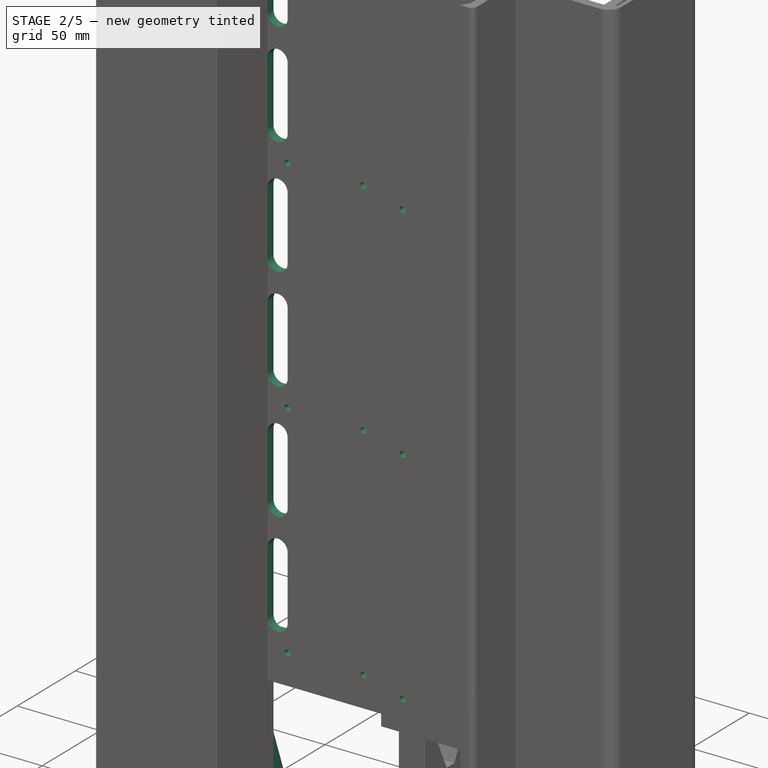
[diagram: stage 2 of 5 — iso view after this stage's code; geometry added in this stage tinted green]
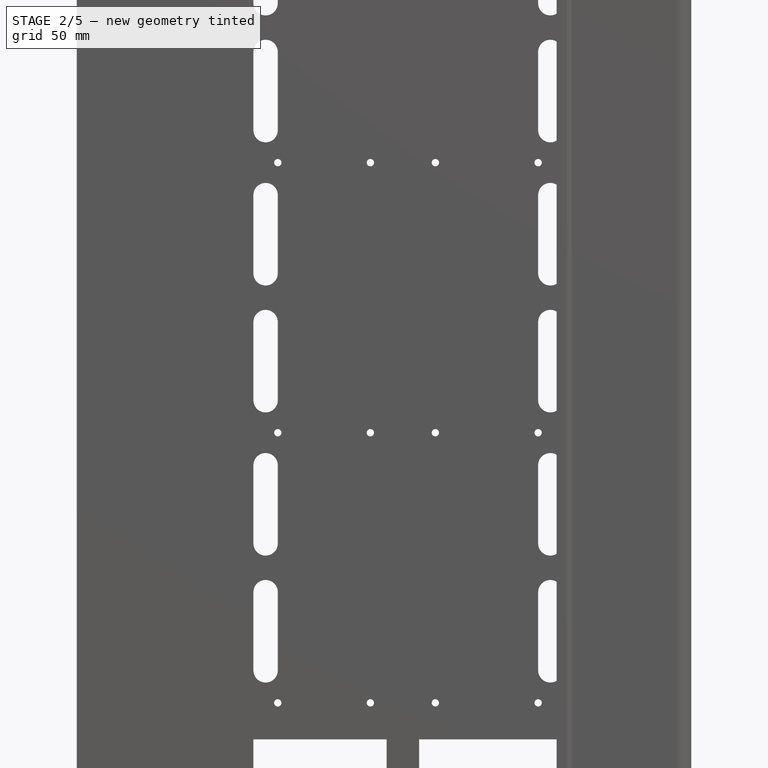
[diagram: stage 2 of 5 — front view after this stage's code; geometry added in this stage tinted green]
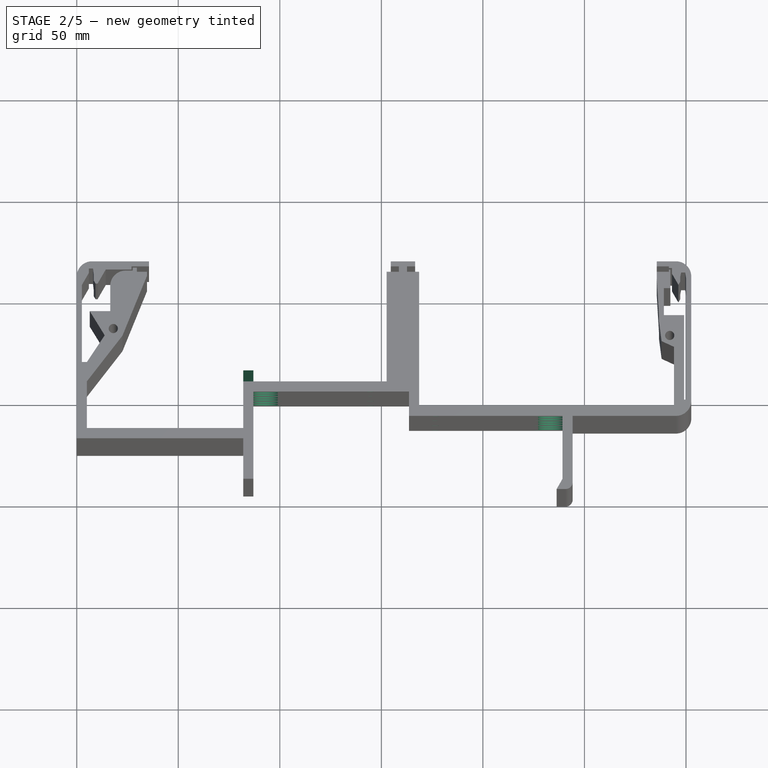
[diagram: stage 2 of 5 — top view after this stage's code; geometry added in this stage tinted green]
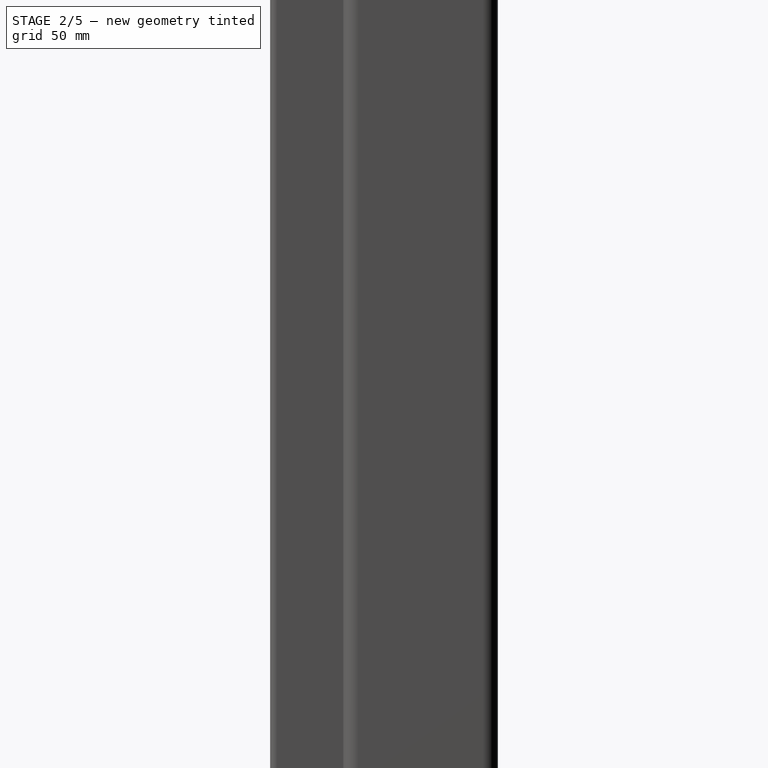
[diagram: stage 2 of 5 — right view after this stage's code; geometry added in this stage tinted green]
FEATURE [Sketcher::SketchObject] Sketch012
  FullyConstrained = false
  MapMode = 5
  Support = -> [XY_Plane]
  sketch-geometry (4):
    g0: LineSegment StartX=277.739 StartY=113.059 StartZ=0 EndX=299.356 EndY=113.059 EndZ=0
    g1: LineSegment StartX=299.356 StartY=113.059 StartZ=0 EndX=299.356 EndY=91.4419 EndZ=0
    g2: LineSegment StartX=299.356 StartY=91.4419 StartZ=0 EndX=277.739 EndY=91.4419 EndZ=0
    g3: LineSegment StartX=277.739 StartY=91.4419 StartZ=0 EndX=277.739 EndY=113.059 EndZ=0
  constraints (8):
    c: Coincident(g0,g1)
    c: Coincident(g1,g2)
    c: Coincident(g2,g3)
    c: Coincident(g3,g0)
    c: Horizontal(g0)
    c: Horizontal(g2)
    c: Vertical(g1)
    c: Vertical(g3)
FEATURE [PartDesign::Plane] DatumPlane005
  AttachmentOffset = pos=(0,0,-5) rot=(0,0,1;0rad)
  Length = 60
  MapMode = 5
  Placement = pos=(0,5,1.1e-15) rot=(1,0,0;1.5708rad)
  ResizeMode = 0
  Support = -> [XZ_Plane]
  Width = 60
FEATURE [Sketcher::SketchObject] Sketch017
  FullyConstrained = false
  MapMode = 5
  Placement = pos=(160.6,-3.57e-14,3.57e-14) rot=(0.57735,0.57735,0.57735;2.0944rad)
  Support = -> [DatumPlane003]
  expr: Constraints[26] = planB#<<data>>.case_w - 8
  sketch-geometry (16):
    g0: LineSegment StartX=0 StartY=93 StartZ=0 EndX=15.9162 EndY=159.5 EndZ=0
    g1: LineSegment StartX=15.9162 StartY=159.5 StartZ=0 EndX=0 EndY=226 EndZ=0
    g2: LineSegment StartX=0 StartY=226 StartZ=0 EndX=15.9162 EndY=292.5 EndZ=0
    g3: LineSegment StartX=15.9162 StartY=292.5 StartZ=0 EndX=0 EndY=359 EndZ=0
    g4: LineSegment StartX=0 StartY=359 StartZ=0 EndX=15.9162 EndY=425.5 EndZ=0
    g5: LineSegment StartX=15.9162 StartY=425.5 StartZ=0 EndX=0 EndY=492 EndZ=0
    g6: LineSegment StartX=0 StartY=492 StartZ=0 EndX=-10.2532 EndY=492 EndZ=0
    g7: LineSegment StartX=-10.2532 StartY=492 StartZ=0 EndX=-10.2532 EndY=93 EndZ=0
    g8: LineSegment StartX=-10.2532 StartY=93 StartZ=0 EndX=0 EndY=93 EndZ=0
    g9: LineSegment StartX=15.9162 StartY=425.5 StartZ=0 EndX=15.9162 EndY=159.5 EndZ=0
    g10: Circle CenterX=12.5 CenterY=470 CenterZ=0 NormalX=0 NormalY=0 NormalZ=1 AngleXU=0 Radius=2.5
    g11: Circle CenterX=12.5 CenterY=30 CenterZ=0 NormalX=0 NormalY=0 NormalZ=1 AngleXU=0 Radius=2.5
    g12: LineSegment StartX=12.5 StartY=470 StartZ=0 EndX=12.5 EndY=30 EndZ=0
    g13: LineSegment StartX=0 StartY=500 StartZ=0 EndX=227.81 EndY=500 EndZ=0
    g14: LineSegment StartX=12.5 StartY=470 StartZ=0 EndX=12.5 EndY=500 EndZ=0
    g15: LineSegment StartX=12.5 StartY=30 StartZ=0 EndX=12.5 EndY=0 EndZ=0
  constraints (44):
    c: PointOnObject(g0,g-2)
    c: Coincident(g0,g1)
    c: PointOnObject(g1,g-2)
    c: Coincident(g1,g2)
    c: Coincident(g2,g3)
    c: PointOnObject(g3,g-2)
    c: Coincident(g3,g4)
    c: Coincident(g4,g5)
    c: Coincident(g5,g6)
    c: Coincident(g6,g7)
    c: Vertical(g7)
    c: Coincident(g7,g8)
    c: Coincident(g8,g0)
    c: Coincident(g9,g4)
    c: Coincident(g9,g0)
    c: Vertical(g9)
    c: PointOnObject(g2,g9)
    c: Equal(g1,g2)
    c: Equal(g2,g3)
    c: Equal(g3,g4)
    c: Equal(g4,g5)
    c: Equal(g5,g0)
    c: Horizontal(g8)
    c: Horizontal(g6)
    c: Distance(g7) = 399
    c: PointOnObject(g5,g-2)
    c: DistanceY(g5) = 492
    c: Coincident(g12,g10)
    c: Coincident(g12,g11)
    c: Vertical(g12)
    c: Equal(g10,g11)
    c: Diameter(g11) = 5
    c: PointOnObject(g13,g-2)
    c: Horizontal(g13)
    c: Coincident(g14,g10)
    c: PointOnObject(g14,g13)
    c: Vertical(g14)
    c: Coincident(g15,g11)
    c: PointOnObject(g15,g-1)
    c: Vertical(g15)
    c: Equal(g15,g14)
    c: DistanceY(g13) = 500
    c: DistanceY(g15,g15) = 30
    c: DistanceX(g15) = 12.5
FEATURE [Sketcher::SketchObject] Sketch018
  FullyConstrained = true
  MapMode = 5
  Support = -> [XY_Plane]
  sketch-geometry (4):
    g0: LineSegment StartX=82 StartY=48.5 StartZ=0 EndX=87 EndY=48.5 EndZ=0
    g1: LineSegment StartX=87 StartY=48.5 StartZ=0 EndX=87 EndY=67 EndZ=0
    g2: LineSegment StartX=87 StartY=67 StartZ=0 EndX=82 EndY=67 EndZ=0
    g3: LineSegment StartX=82 StartY=67 StartZ=0 EndX=82 EndY=48.5 EndZ=0
  constraints (12):
    c: Coincident(g0,g1)
    c: Coincident(g1,g2)
    c: Coincident(g2,g3)
    c: Coincident(g3,g0)
    c: Horizontal(g0)
    c: Horizontal(g2)
    c: Vertical(g1)
    c: Vertical(g3)
    c: DistanceX(g2) = 82
    c: DistanceX(g2,g2) = 5
    c: DistanceY(g3,g3) = 18.5
    c: DistanceY(g0) = 48.5
FEATURE [PartDesign::Pad] Pad001
  BaseFeature = -> Pocket004
  Direction = (0,0,1)
  Length = 45
  Length2 = 10
  Profile = -> Sketch018
  ReferenceAxis = -> Sketch018 [N_Axis]
  Type = 0
FEATURE [PartDesign::Chamfer] Chamfer
  Angle = 70
  Base = -> Pad001 [Edge338]
  BaseFeature = -> Pad001
  ChamferType = 2
  FlipDirection = false
  Size = 13.99
  Size2 = 1
  SupportTransform = false
  UseAllEdges = false
FEATURE [PartDesign::Plane] DatumPlane006
  AttachmentOffset = pos=(0,0,-7) rot=(0,0,1;0rad)
  Length = 60
  MapMode = 5
  Placement = pos=(0,7,1.6e-15) rot=(1,0,0;1.5708rad)
  ResizeMode = 0
  Support = -> [XZ_Plane]
  Width = 60
FEATURE [Sketcher::SketchObject] Sketch006
  FullyConstrained = false
  MapMode = 5
  Placement = pos=(0,7,1.6e-15) rot=(1,0,0;1.5708rad)
  Support = -> [DatumPlane006]
  expr: Constraints[11] = 55 + <<planB>>#<<data>>.panel_thickness
  expr: Constraints[12] = 60 + <<planB>>#<<data>>.panel_thickness
  expr: Constraints[32] = <<planB>>#<<data>>.clearance_m3
  expr: Constraints[37] = <<planB>>#<<data>>.case_w
  sketch-geometry (35):
    g0: LineSegment StartX=144.6 StartY=0 StartZ=0 EndX=144.6 EndY=500 EndZ=0
    g1: LineSegment StartX=227.2 StartY=500 StartZ=0 EndX=227.2 EndY=0 EndZ=0
    g2: LineSegment StartX=176.6 StartY=0 StartZ=0 EndX=176.6 EndY=500 EndZ=0
    g3: GeomPoint X=87 Y=0 Z=0
    g4: GeomPoint X=239.2 Y=0 Z=0
    g5: LineSegment StartX=227.2 StartY=492 StartZ=0 EndX=99 EndY=492 EndZ=0
    g6: LineSegment StartX=227.2 StartY=359 StartZ=0 EndX=99 EndY=359 EndZ=0
    g7: LineSegment StartX=99 StartY=226 StartZ=0 EndX=227.2 EndY=226 EndZ=0
    g8: LineSegment StartX=99 StartY=93 StartZ=0 EndX=227.2 EndY=93 EndZ=0
    g9: Circle CenterX=99 CenterY=492 CenterZ=0 NormalX=0 NormalY=0 NormalZ=1 AngleXU=0 Radius=1.8
    g10: Circle CenterX=227.2 CenterY=492 CenterZ=0 NormalX=0 NormalY=0 NormalZ=1 AngleXU=0 Radius=1.8
    g11: Circle CenterX=144.6 CenterY=492 CenterZ=0 NormalX=0 NormalY=0 NormalZ=1 AngleXU=0 Radius=1.8
    g12: Circle CenterX=176.6 CenterY=492 CenterZ=0 NormalX=0 NormalY=0 NormalZ=1 AngleXU=0 Radius=1.8
    g13: LineSegment StartX=126.628 StartY=500 StartZ=0 EndX=52.7607 EndY=500 EndZ=0
    g14: LineSegment StartX=87 StartY=500 StartZ=0 EndX=87 EndY=0 EndZ=0
    g15: ArcOfCircle CenterX=93 CenterY=476 CenterZ=0 NormalX=0 NormalY=0 NormalZ=1 AngleXU=0 Radius=6 StartAngle=-3.6e-15 EndAngle=3.14159
    g16: ArcOfCircle CenterX=93 CenterY=437.5 CenterZ=0 NormalX=0 NormalY=0 NormalZ=1 AngleXU=0 Radius=6 StartAngle=3.14159 EndAngle=6.28319
    g17: LineSegment StartX=87 StartY=476 StartZ=0 EndX=87 EndY=437.5 EndZ=0
    g18: LineSegment StartX=99 StartY=437.5 StartZ=0 EndX=99 EndY=476 EndZ=0
    g19: ArcOfCircle CenterX=93 CenterY=413.5 CenterZ=0 NormalX=0 NormalY=0 NormalZ=1 AngleXU=0 Radius=6 StartAngle=0 EndAngle=3.14159
    g20: ArcOfCircle CenterX=93 CenterY=375 CenterZ=0 NormalX=0 NormalY=0 NormalZ=1 AngleXU=0 Radius=6 StartAngle=3.14159 EndAngle=6.28319
    g21: LineSegment StartX=87 StartY=413.5 StartZ=0 EndX=87 EndY=375 EndZ=0
    g22: LineSegment StartX=99 StartY=375 StartZ=0 EndX=99 EndY=413.5 EndZ=0
    g23: ArcOfCircle CenterX=233.2 CenterY=476 CenterZ=0 NormalX=0 NormalY=0 NormalZ=1 AngleXU=0 Radius=6 StartAngle=2.5e-15 EndAngle=3.14159
    g24: ArcOfCircle CenterX=233.2 CenterY=437.5 CenterZ=0 NormalX=0 NormalY=0 NormalZ=1 AngleXU=0 Radius=6 StartAngle=3.14159 EndAngle=6.28319
    g25: LineSegment StartX=227.2 StartY=476 StartZ=0 EndX=227.2 EndY=437.5 EndZ=0
    g26: LineSegment StartX=239.2 StartY=437.5 StartZ=0 EndX=239.2 EndY=476 EndZ=0
    g27: ArcOfCircle CenterX=233.2 CenterY=413.5 CenterZ=0 NormalX=0 NormalY=0 NormalZ=1 AngleXU=0 Radius=6 StartAngle=0 EndAngle=3.14159
    g28: ArcOfCircle CenterX=233.2 CenterY=375 CenterZ=0 NormalX=0 NormalY=0 NormalZ=1 AngleXU=0 Radius=6 StartAngle=3.14159 EndAngle=6.28319
    g29: LineSegment StartX=227.2 StartY=413.5 StartZ=0 EndX=227.2 EndY=375 EndZ=0
    g30: LineSegment StartX=239.2 StartY=375 StartZ=0 EndX=239.2 EndY=413.5 EndZ=0
    g31: Circle CenterX=144.6 CenterY=359 CenterZ=0 NormalX=0 NormalY=0 NormalZ=1 AngleXU=0 Radius=1.8
    g32: Circle CenterX=176.6 CenterY=359 CenterZ=0 NormalX=0 NormalY=0 NormalZ=1 AngleXU=0 Radius=1.8
    g33: Circle CenterX=227.2 CenterY=359 CenterZ=0 NormalX=0 NormalY=0 NormalZ=1 AngleXU=0 Radius=1.8
    g34: Circle CenterX=99 CenterY=359 CenterZ=0 NormalX=0 NormalY=0 NormalZ=1 AngleXU=0 Radius=1.8
  constraints (94):
    c: PointOnObject(g0,g-1)
    c: Vertical(g0)
    c: Vertical(g1)
    c: PointOnObject(g2,g-1)
    c: Vertical(g2)
    c: Equal(g1,g2)
    c: Equal(g2,g0)
    c: PointOnObject(g1,g-1)
    c: PointOnObject(g3,g-1)
    c: DistanceX(g3) = 87
    c: PointOnObject(g4,g-1)
    c: Distance(g3,g0) = 57.6
    c: Distance(g4,g2) = 62.6
    c: Distance(g4,g1) = 12
    c: DistanceX(g4) = 239.2
    c: PointOnObject(g5,g1)
    c: Horizontal(g5)
    c: PointOnObject(g6,g1)
    c: Horizontal(g6)
    c: PointOnObject(g7,g1)
    c: Horizontal(g7)
    c: PointOnObject(g8,g1)
    c: Horizontal(g8)
    c: Coincident(g9,g5)
    c: Coincident(g10,g5)
    c: PointOnObject(g11,g0)
    c: PointOnObject(g12,g2)
    c: PointOnObject(g11,g5)
    c: PointOnObject(g12,g5)
    c: Equal(g9,g11)
    c: Equal(g11,g12)
    c: Equal(g12,g10)
    c: Diameter(g10) = 3.6
    c: Horizontal(g13)
    c: Distance(g9,g6) = 133
    c: Distance(g6,g7) = 133
    c: Distance(g7,g8) = 133
    c: DistanceY(g13) = 500
    c: PointOnObject(g14,g13)
    c: Coincident(g14,g3)
    c: Vertical(g14)
    c: Distance(g9,g14) = 12
    c: Tangent(g15,g17) = -1.5708
    c: Tangent(g17,g16) = -1.5708
    c: Tangent(g16,g18) = -1.5708
    c: Tangent(g18,g15) = -1.5708
    c: Equal(g15,g16)
    c: Vertical(g17)
    c: Tangent(g19,g21) = -1.5708
    c: Tangent(g21,g20) = -1.5708
    c: Tangent(g20,g22) = -1.5708
    c: Tangent(g22,g19) = -1.5708
    c: Equal(g19,g20)
    c: Vertical(g21)
    c: Tangent(g23,g25) = -1.5708
    c: Tangent(g25,g24) = -1.5708
    c: Tangent(g24,g26) = -1.5708
    c: Tangent(g26,g23) = -1.5708
    c: Equal(g23,g24)
    c: Vertical(g25)
    c: Tangent(g27,g29) = -1.5708
    c: Tangent(g29,g28) = -1.5708
    c: Tangent(g28,g30) = -1.5708
    c: Tangent(g30,g27) = -1.5708
    c: Equal(g27,g28)
    c: Vertical(g29)
    c: Equal(g22,g29)
    c: Equal(g29,g25)
    c: Equal(g25,g18)
    c: Equal(g15,g19)
    c: Equal(g19,g24)
    c: Equal(g24,g27)
    c: Diameter(g19) = 12
    c: PointOnObject(g15,g14)
    c: PointOnObject(g19,g14)
    c: Distance(g15,g13) = 24
    c: PointOnObject(g23,g1)
    c: PointOnObject(g27,g1)
    c: Distance(g19,g16) = 24
    c: Distance(g20,g6) = 16
    c: Distance(g28,g6) = 16
    c: Distance(g24,g27) = 24
    c: PointOnObject(g31,g6)
    c: PointOnObject(g32,g6)
    c: PointOnObject(g32,g2)
    c: PointOnObject(g31,g0)
    c: Coincident(g33,g6)
    c: Coincident(g34,g6)
    c: Equal(g34,g31)
    c: Equal(g31,g32)
    c: Equal(g32,g33)
    c: Equal(g33,g9)
    c: Distance(g9,g13) = 8
    c: Equal(g6,g5)
FEATURE [PartDesign::Pocket] Pocket005  label="cable passthru and es holder mountings"
  BaseFeature = -> Chamfer
  Direction = (0,1,2e-16)
  Length = 55
  Length2 = 5
  Profile = -> Sketch006
  ReferenceAxis = -> Sketch006 [N_Axis]
  Type = 0
FEATURE [PartDesign::LinearPattern] LinearPattern
  BaseFeature = -> Pocket005
  Direction = -> Sketch006 [V_Axis]
  Length = 266
  Occurrences = 3
  Originals = -> [Pocket005]
  Reversed = true
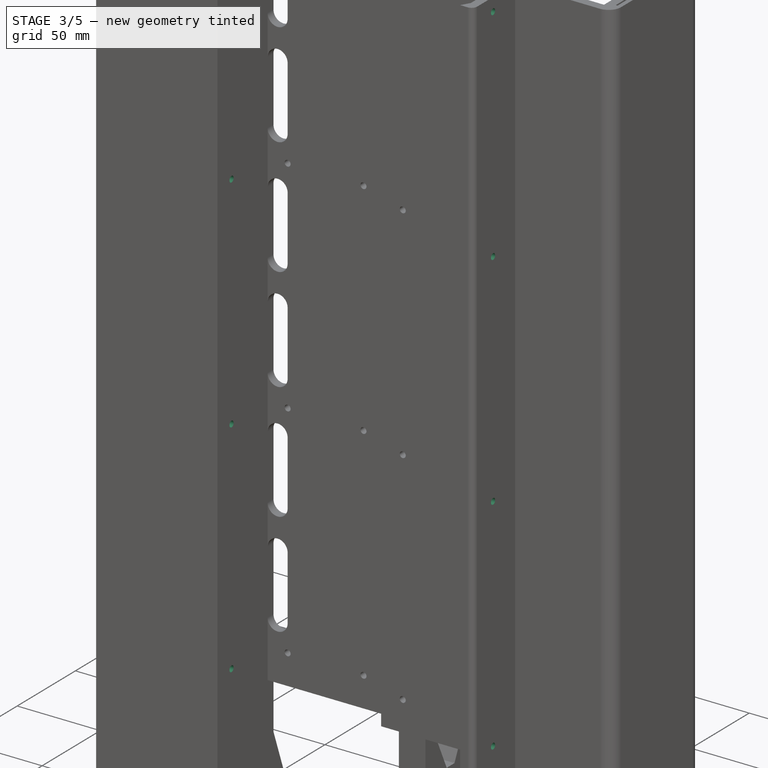
[diagram: stage 3 of 5 — iso view after this stage's code; geometry added in this stage tinted green]
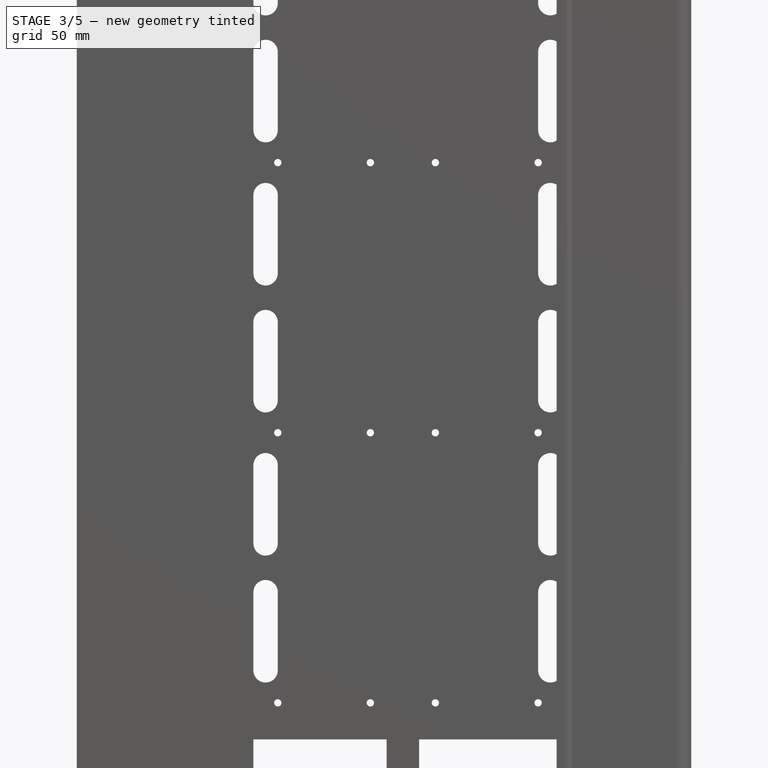
[diagram: stage 3 of 5 — front view after this stage's code; geometry added in this stage tinted green]
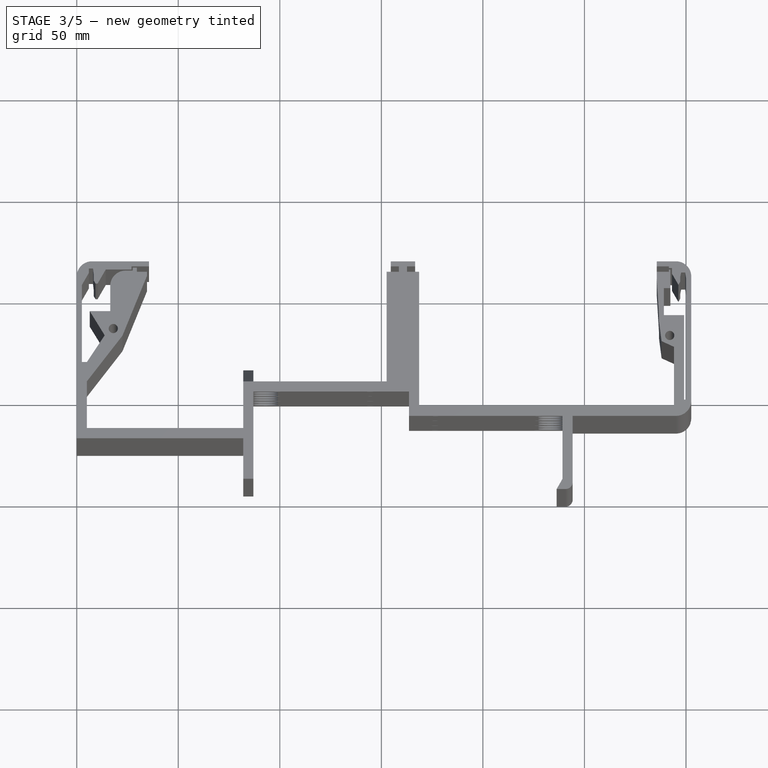
[diagram: stage 3 of 5 — top view after this stage's code; geometry added in this stage tinted green]
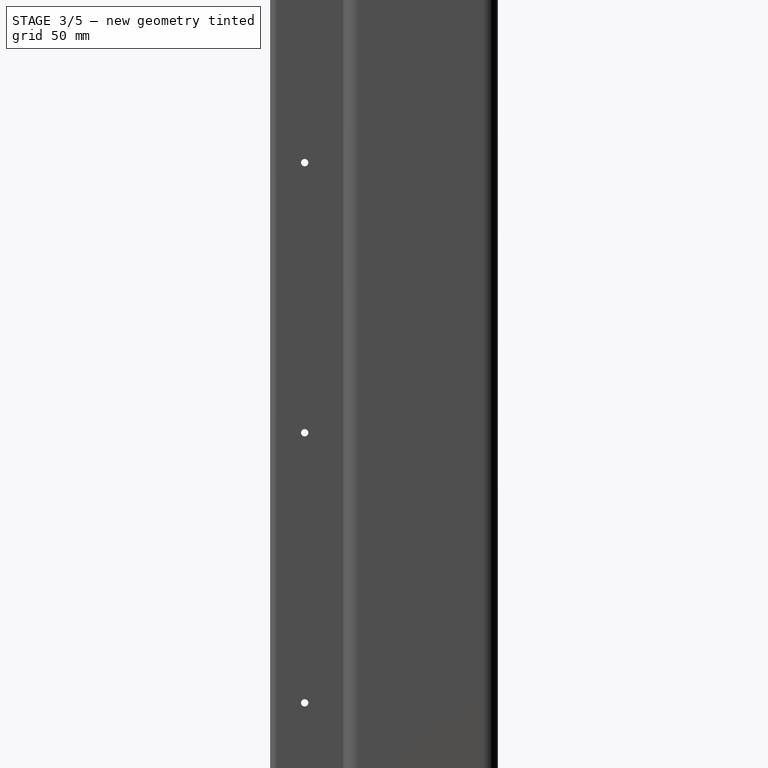
[diagram: stage 3 of 5 — right view after this stage's code; geometry added in this stage tinted green]
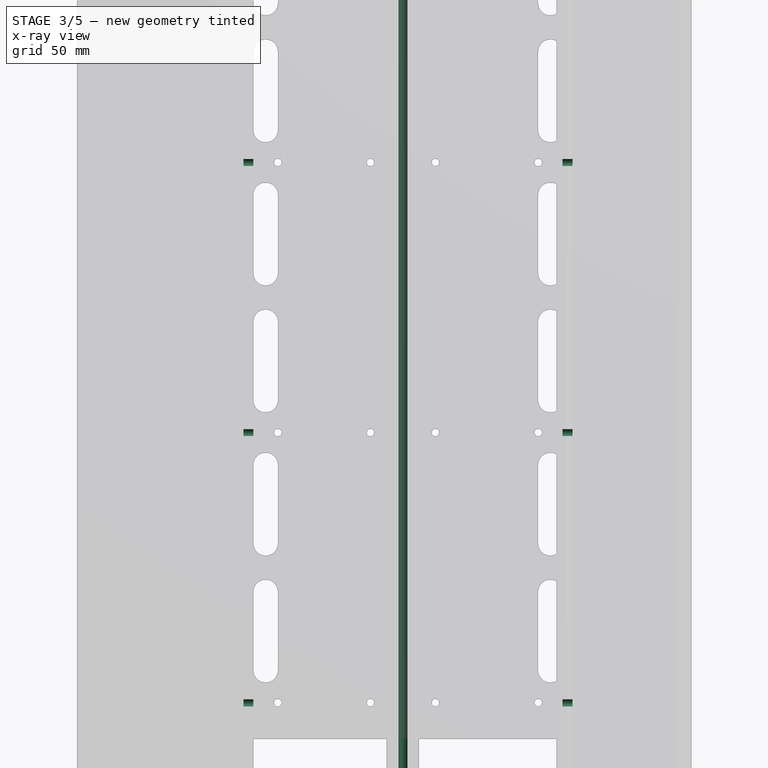
[diagram: stage 3 of 5 — x-ray composite at the front view; earlier geometry ghosted, this stage's added geometry solid]
FEATURE [PartDesign::Pocket] Pocket006  label="front side cheek cut"
  BaseFeature = -> LinearPattern
  Direction = (0,0,-1)
  Length = 16
  Length2 = 5
  Profile = -> Sketch007
  ReferenceAxis = -> Sketch007 [N_Axis]
  Reversed = true
  Type = 0
FEATURE [PartDesign::Pocket] Pocket007  label="ribs sidescrew holes"
  BaseFeature = -> Pocket006
  Direction = (-1,1e-16,-1e-16)
  Length = 178
  Length2 = 5
  Midplane = true
  Profile = -> Sketch008
  ReferenceAxis = -> Sketch008 [N_Axis]
  Type = 0
FEATURE [PartDesign::Pocket] Pocket008  label="threadedrod middle"
  BaseFeature = -> Pocket007
  Direction = (0,0,-1)
  Length = 430
  Length2 = 5
  Midplane = true
  Profile = -> Sketch_1
  ReferenceAxis = -> Sketch_1 [N_Axis]
  Type = 0
  expr: Length = <<data>>.case_w - 70
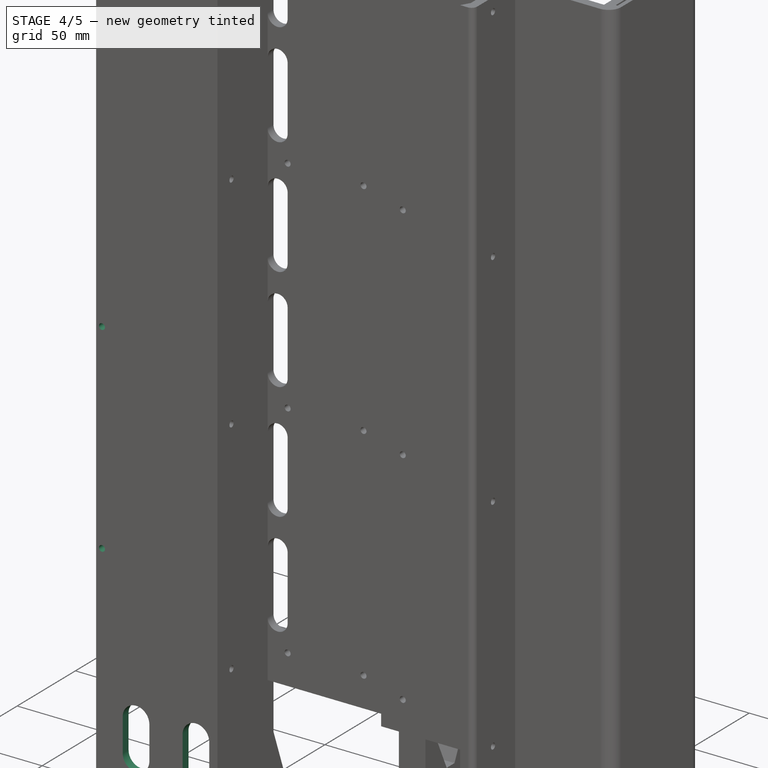
[diagram: stage 4 of 5 — iso view after this stage's code; geometry added in this stage tinted green]
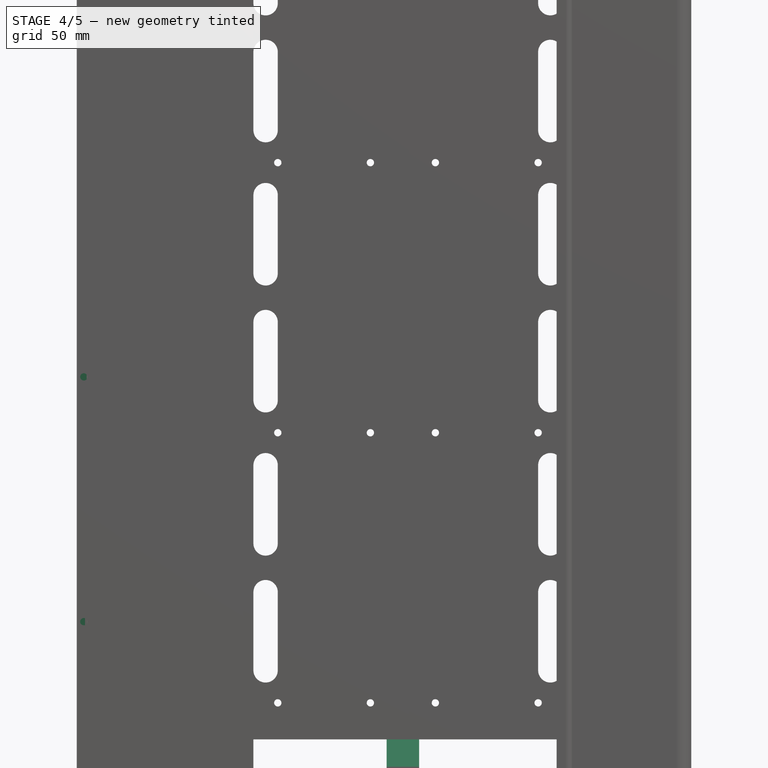
[diagram: stage 4 of 5 — front view after this stage's code; geometry added in this stage tinted green]
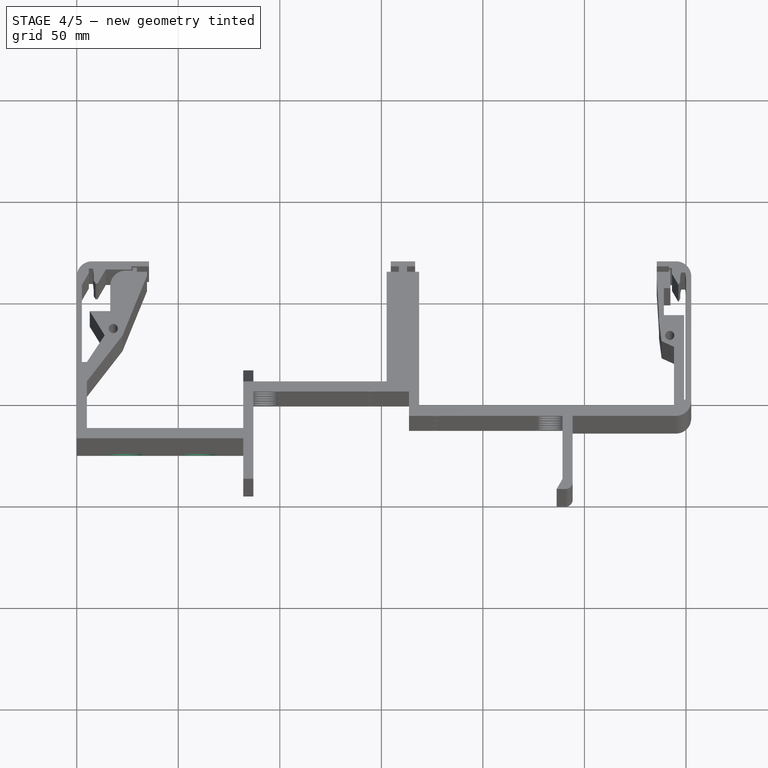
[diagram: stage 4 of 5 — top view after this stage's code; geometry added in this stage tinted green]
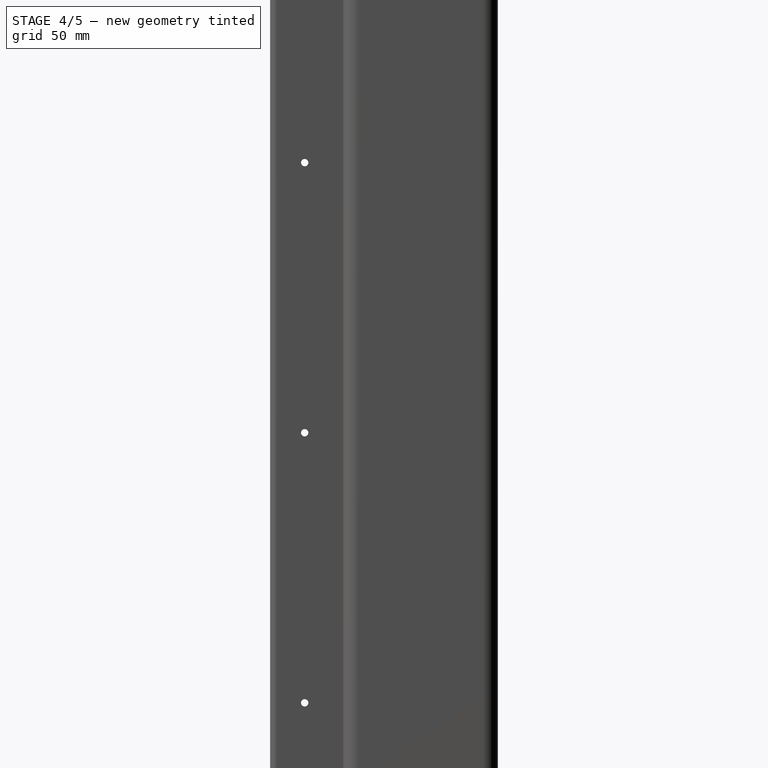
[diagram: stage 4 of 5 — right view after this stage's code; geometry added in this stage tinted green]
FEATURE [PartDesign::Pocket] Pocket009  label="endcheek sidescrews"
  BaseFeature = -> Pocket008
  Direction = (-1,1e-16,-1e-16)
  Length = 25
  Length2 = 5
  Midplane = true
  Profile = -> Sketch009
  ReferenceAxis = -> Sketch009 [N_Axis]
  Type = 0
FEATURE [PartDesign::Pocket] Pocket010  label="endcheek topscrews"
  BaseFeature = -> Pocket009
  Direction = (0,1,2e-16)
  Length = 38
  Length2 = 5
  Profile = -> Sketch010
  ReferenceAxis = -> Sketch010 [N_Axis]
  Type = 0
FEATURE [PartDesign::Pocket] Pocket011  label="power wire passthru"
  BaseFeature = -> Pocket010
  Direction = (0,1,2e-16)
  Length = 35
  Length2 = 5
  Profile = -> Sketch011
  ReferenceAxis = -> Sketch011 [N_Axis]
  Type = 0
FEATURE [PartDesign::Pocket] Pocket012  label="end tab trim"
  BaseFeature = -> Pocket011
  Direction = (0,0,-1)
  Length = 12
  Length2 = 5
  Profile = -> Sketch012
  ReferenceAxis = -> Sketch012 [N_Axis]
  Reversed = true
  Type = 0
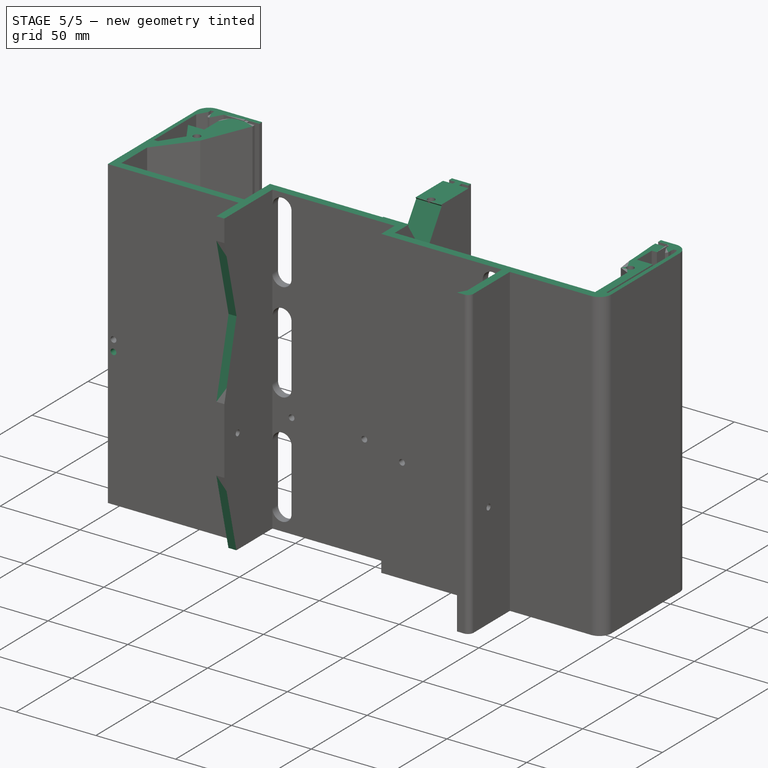
[diagram: stage 5 of 5 — iso view after this stage's code; geometry added in this stage tinted green]
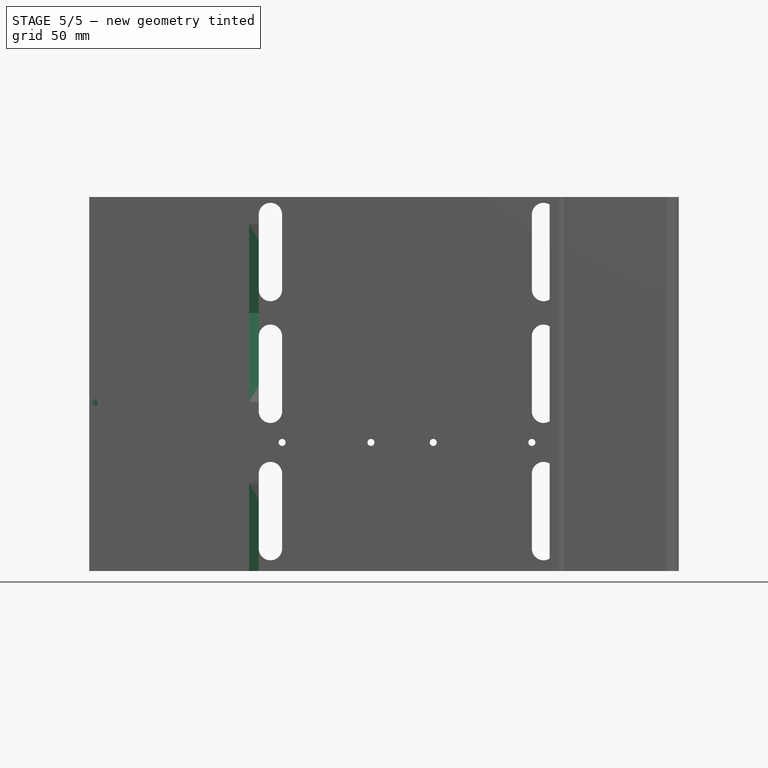
[diagram: stage 5 of 5 — front view after this stage's code; geometry added in this stage tinted green]
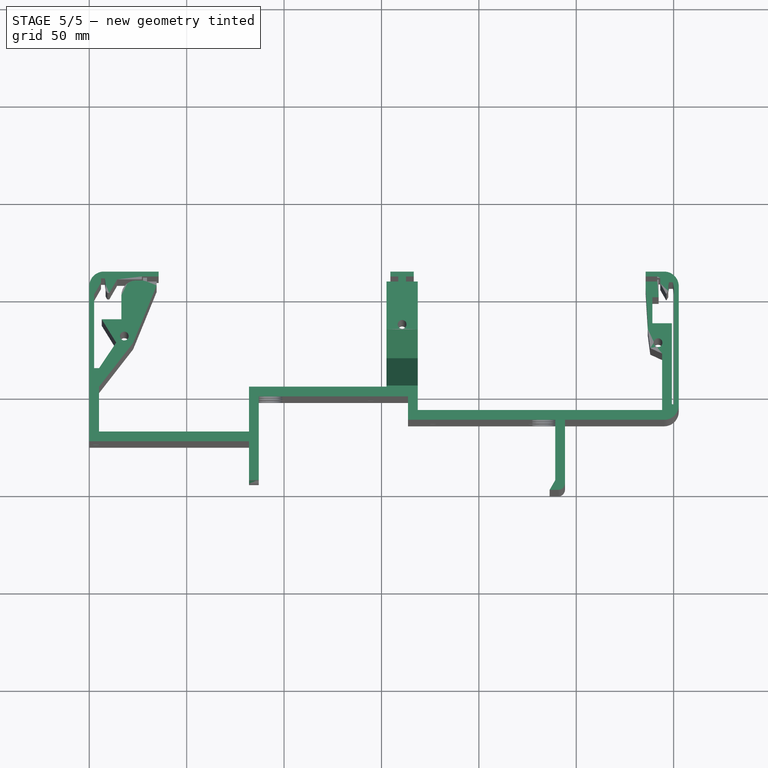
[diagram: stage 5 of 5 — top view after this stage's code; geometry added in this stage tinted green]
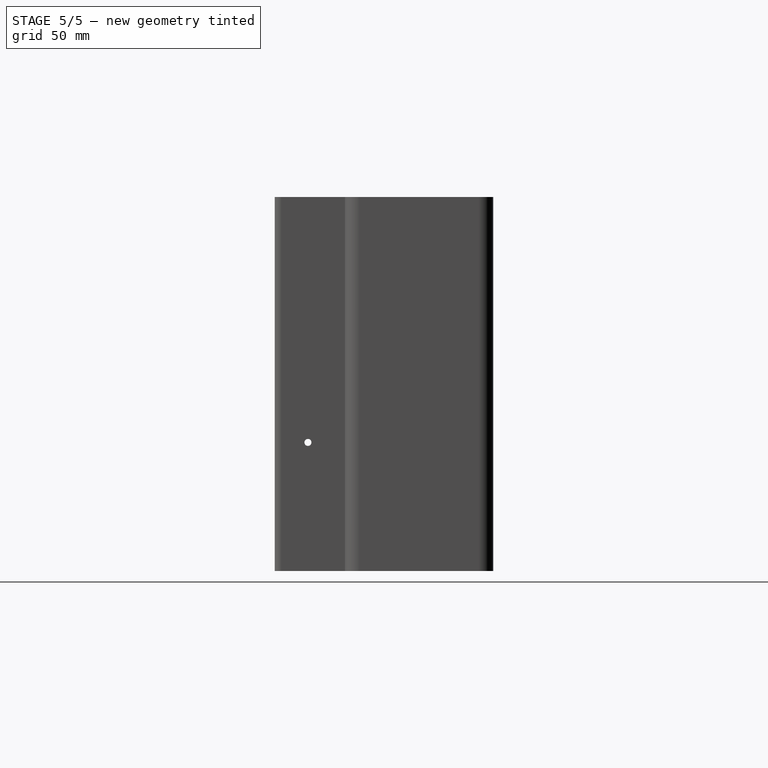
[diagram: stage 5 of 5 — right view after this stage's code; geometry added in this stage tinted green]
FEATURE [PartDesign::Pocket] Pocket014  label="power wire passthroughs to es modules"
  BaseFeature = -> Pocket012
  Direction = (-1,1e-16,-1e-16)
  Length = 83
  Length2 = 5
  Profile = -> Sketch017
  ReferenceAxis = -> Sketch017 [N_Axis]
  Type = 0
FEATURE [PartDesign::Mirrored] Mirrored
  BaseFeature = -> Pocket014
  MirrorPlane = -> DatumPlane001
  Originals = -> [Pocket004,Pocket,Pocket006,Pocket009,Pocket010,Pocket012]
FEATURE [Sketcher::SketchObject] Sketch019
  FullyConstrained = false
  MapMode = 5
  Support = -> [XY_Plane]
  sketch-geometry (4):
    g0: LineSegment StartX=-46.0344 StartY=180.805 StartZ=0 EndX=396.131 EndY=180.805 EndZ=0
    g1: LineSegment StartX=396.131 StartY=180.805 StartZ=0 EndX=396.131 EndY=-63.2046 EndZ=0
    g2: LineSegment StartX=396.131 StartY=-63.2046 StartZ=0 EndX=-46.0344 EndY=-63.2046 EndZ=0
    g3: LineSegment StartX=-46.0344 StartY=-63.2046 StartZ=0 EndX=-46.0344 EndY=180.805 EndZ=0
  constraints (8):
    c: Coincident(g0,g1)
    c: Coincident(g1,g2)
    c: Coincident(g2,g3)
    c: Coincident(g3,g0)
    c: Horizontal(g0)
    c: Horizontal(g2)
    c: Vertical(g1)
    c: Vertical(g3)
FEATURE [PartDesign::Pocket] Pocket015
  BaseFeature = -> Mirrored
  Direction = (0,0,-1)
  Length = 160
  Length2 = 5
  Profile = -> Sketch019
  ReferenceAxis = -> Sketch019 [N_Axis]
  Reversed = true
  Type = 0
FEATURE [PartDesign::Plane] DatumPlane007  label="xy340"
  AttachmentOffset = pos=(0,0,352) rot=(0,0,1;0rad)
  Length = 60
  MapMode = 5
  Placement = pos=(0,0,352) rot=(0,0,1;0rad)
  ResizeMode = 0
  Support = -> [XY_Plane]
  Width = 60
FEATURE [Sketcher::SketchObject] Sketch020
  FullyConstrained = false
  MapMode = 5
  Placement = pos=(0,0,352) rot=(0,0,1;0rad)
  Support = -> [DatumPlane007]
  sketch-geometry (4):
    g0: LineSegment StartX=-17.5394 StartY=134.296 StartZ=0 EndX=333.9 EndY=134.296 EndZ=0
    g1: LineSegment StartX=333.9 StartY=134.296 StartZ=0 EndX=333.9 EndY=-19.9707 EndZ=0
    g2: LineSegment StartX=333.9 StartY=-19.9707 StartZ=0 EndX=-17.5394 EndY=-19.9707 EndZ=0
    g3: LineSegment StartX=-17.5394 StartY=-19.9707 StartZ=0 EndX=-17.5394 EndY=134.296 EndZ=0
  constraints (8):
    c: Coincident(g0,g1)
    c: Coincident(g1,g2)
    c: Coincident(g2,g3)
    c: Coincident(g3,g0)
    c: Horizontal(g0)
    c: Horizontal(g2)
    c: Vertical(g1)
    c: Vertical(g3)
FEATURE [PartDesign::Pocket] Pocket016
  BaseFeature = -> Pocket015
  Direction = (0,0,-1)
  Length = 5
  Length2 = 5
  Profile = -> Sketch020
  ReferenceAxis = -> Sketch020 [N_Axis]
  Reversed = true
  Type = 1
FEATURE [PartDesign::Body] Body
  Group = -> [DatumPlane,DatumPlane001,DatumPlane002,Sketch001,Pad,Sketch,Pocket,Sketch002,Pocket001,Sketch005,Pocket004,Pad001,Chamfer,Sketch006,Pocket005,LinearPattern,Sketch007,Pocket006,DatumPlane003,Sketch008,Pocket007,DatumPlane004,Sketch_1,Pocket008,Sketch009,Pocket009,Sketch010,Pocket010,Sketch011,Pocket011,Sketch012,Pocket012,DatumPlane005,Sketch017,Pocket014,Sketch018,DatumPlane006,DatumPlane007,+5 more]
  Origin = -> Origin
  Tip = -> Pocket014
FEATURE [App::Part] main
  Group = -> [LCS_0,Body]
  Origin = -> Origin001
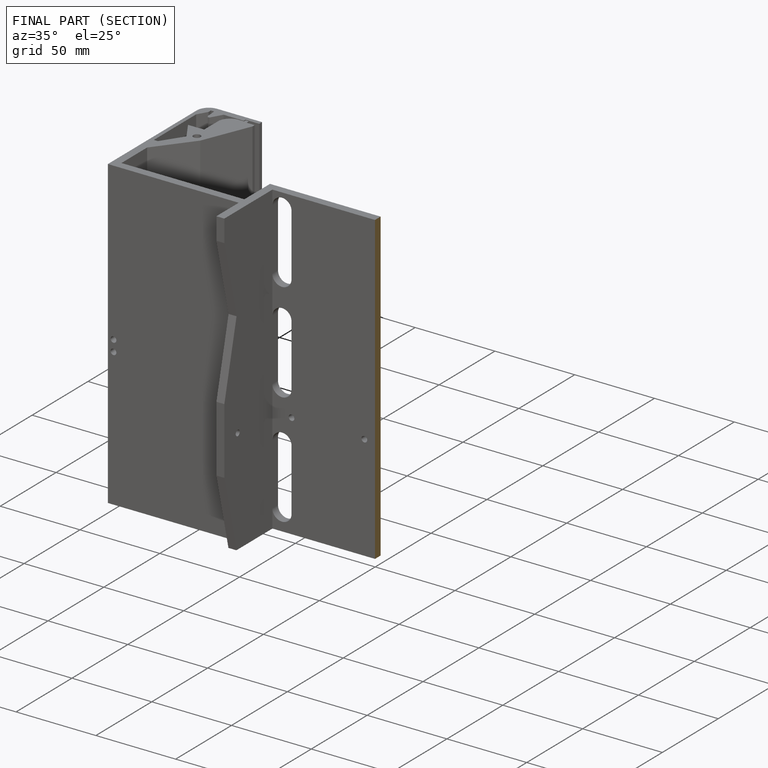
[diagram: finished part — half-section view (interior)]
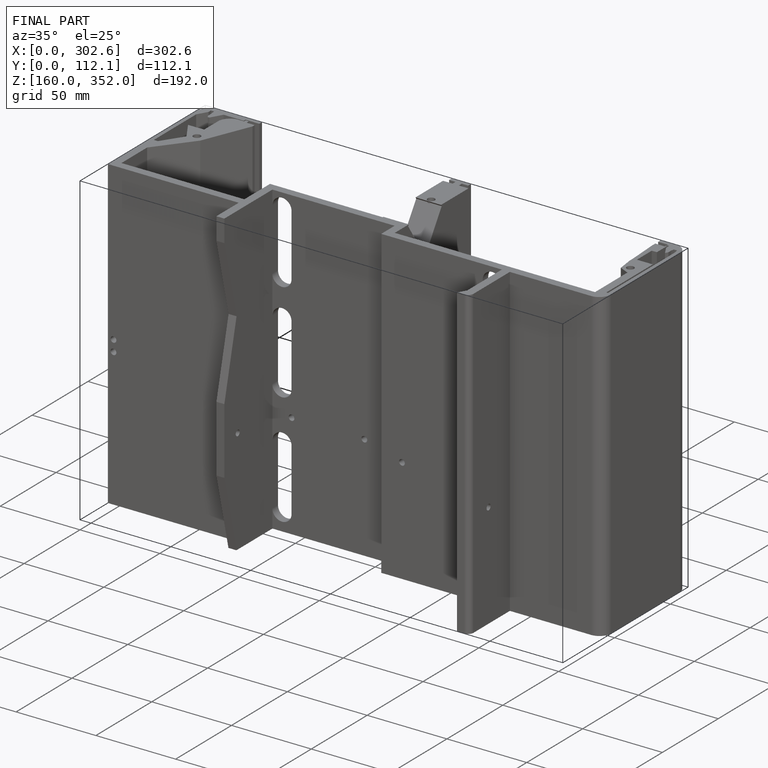
[diagram: finished part — iso view with bounding-box wireframe]
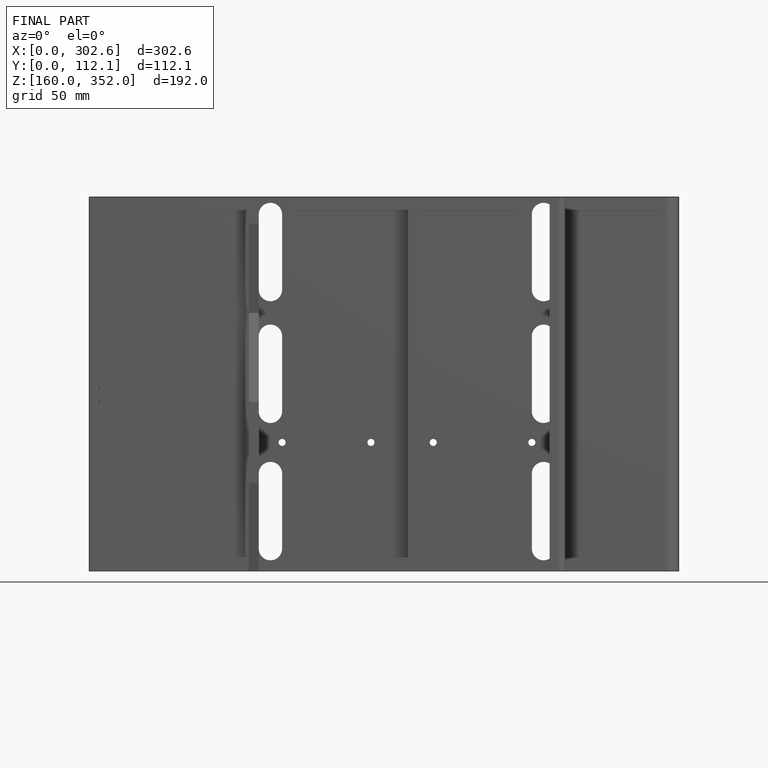
[diagram: finished part — front view with bounding-box wireframe]
